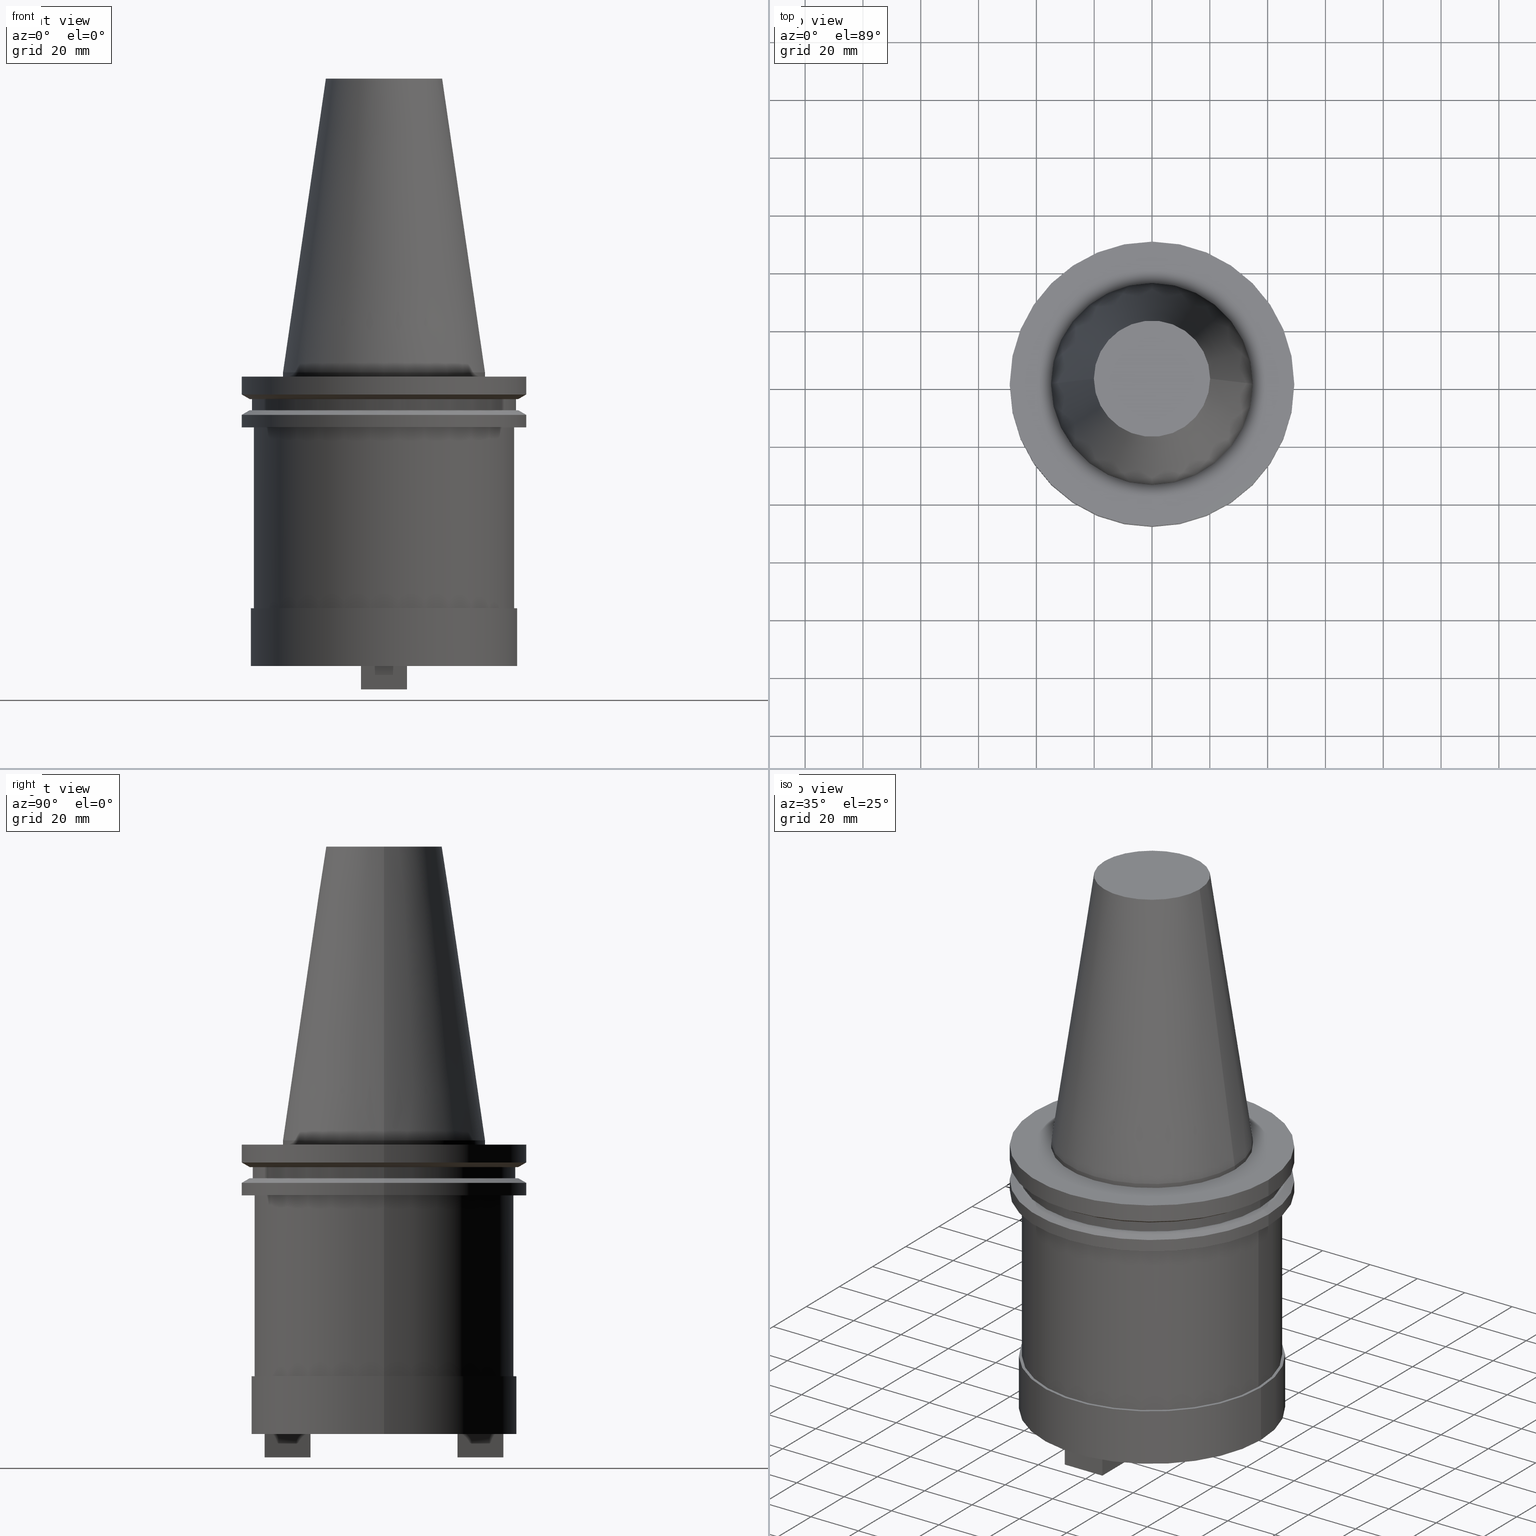
[diagram: canonical four-view strip — front | top / right | iso, engineering-drawing reading convention]
A machine part, canonical four-view strip (front | top / right | iso — engineering-drawing reading convention). The complete STEP part file that produces these views, byte-faithful:
ISO-10303-21;
HEADER;
FILE_DESCRIPTION (( 'STEP AP203' ),
    '1' );
FILE_NAME ('BCV50H-SMC1_500-4.stp',
    '2022-03-03T21:10:57',
    ( '' ),
    ( '' ),
    'SwSTEP 2.0',
    'SolidWorks 2021',
    '' );
FILE_SCHEMA (( 'CONFIG_CONTROL_DESIGN' ));
ENDSEC;

DATA;
#1 = DIRECTION ( 'NONE',  ( -0.000000000000000000, -0.000000000000000000, 1.000000000000000000 ) ) ;
#2 = ORIENTED_EDGE ( 'NONE', *, *, #653, .T. ) ;
#3 = ADVANCED_FACE ( 'NONE', ( #151 ), #161, .T. ) ;
#4 = DIRECTION ( 'NONE',  ( 0.8660254037844405950, 1.060575238724909133E-16, -0.4999999999999965583 ) ) ;
#5 = EDGE_CURVE ( 'NONE', #887, #789, #555, .T. ) ;
#6 = AXIS2_PLACEMENT_3D ( 'NONE', #604, #876, #469 ) ;
#7 = APPROVAL_PERSON_ORGANIZATION ( #219, #441, #473 ) ;
#8 = DIRECTION ( 'NONE',  ( -0.000000000000000000, -0.000000000000000000, 1.000000000000000000 ) ) ;
#9 = ORIENTED_EDGE ( 'NONE', *, *, #810, .F. ) ;
#10 = AXIS2_PLACEMENT_3D ( 'NONE', #53, #985, #574 ) ;
#11 = LINE ( 'NONE', #360, #911 ) ;
#12 = EDGE_CURVE ( 'NONE', #721, #90, #637, .T. ) ;
#13 = CARTESIAN_POINT ( 'NONE',  ( 7.936000000000001720, 41.27549999999999386, -109.6800000000000068 ) ) ;
#14 = ORIENTED_EDGE ( 'NONE', *, *, #977, .F. ) ;
#15 = ORIENTED_EDGE ( 'NONE', *, *, #691, .T. ) ;
#16 = DIRECTION ( 'NONE',  ( 1.000000000000000000, 0.000000000000000000, 0.000000000000000000 ) ) ;
#17 = DIRECTION ( 'NONE',  ( -0.000000000000000000, -0.000000000000000000, 1.000000000000000000 ) ) ;
#18 = ADVANCED_FACE ( 'NONE', ( #1058 ), #578, .F. ) ;
#19 = ORIENTED_EDGE ( 'NONE', *, *, #258, .F. ) ;
#20 = DIRECTION ( 'NONE',  ( 0.000000000000000000, -0.000000000000000000, 1.000000000000000000 ) ) ;
#21 = ORIENTED_EDGE ( 'NONE', *, *, #990, .T. ) ;
#22 = LINE ( 'NONE', #288, #605 ) ;
#23 = LINE ( 'NONE', #543, #656 ) ;
#24 = CIRCLE ( 'NONE', #298, 49.21500000000000341 ) ;
#25 = ORIENTED_EDGE ( 'NONE', *, *, #324, .T. ) ;
#26 = DIRECTION ( 'NONE',  ( -1.000000000000000000, 0.000000000000000000, 0.000000000000000000 ) ) ;
#27 = VECTOR ( 'NONE', #88, 1000.000000000000000 ) ;
#28 = AXIS2_PLACEMENT_3D ( 'NONE', #766, #595, #518 ) ;
#29 = ORIENTED_EDGE ( 'NONE', *, *, #586, .T. ) ;
#30 = DIRECTION ( 'NONE',  ( 1.000000000000000000, 0.000000000000000000, 0.000000000000000000 ) ) ;
#31 = ORIENTED_EDGE ( 'NONE', *, *, #639, .F. ) ;
#32 = FACE_OUTER_BOUND ( 'NONE', #647, .T. ) ;
#33 = VERTEX_POINT ( 'NONE', #307 ) ;
#34 = ADVANCED_FACE ( 'NONE', ( #482 ), #805, .T. ) ;
#35 = DIRECTION ( 'NONE',  ( 0.000000000000000000, -0.000000000000000000, 1.000000000000000000 ) ) ;
#36 = MECHANICAL_CONTEXT ( 'NONE', #358, 'mechanical' ) ;
#37 = DIRECTION ( 'NONE',  ( -1.000000000000000000, 0.000000000000000000, 0.000000000000000000 ) ) ;
#38 = LINE ( 'NONE', #701, #234 ) ;
#39 = EDGE_LOOP ( 'NONE', ( #1020, #846, #235, #212 ) ) ;
#40 = UNCERTAINTY_MEASURE_WITH_UNIT (LENGTH_MEASURE( 1.000000000000000082E-05 ), #102, 'distance_accuracy_value', 'NONE');
#41 = CARTESIAN_POINT ( 'NONE',  ( 0.000000000000000000, 0.000000000000000000, -109.6800000000000068 ) ) ;
#42 = PERSON_AND_ORGANIZATION ( #559, #176 ) ;
#43 = DIRECTION ( 'NONE',  ( -0.000000000000000000, -0.000000000000000000, 1.000000000000000000 ) ) ;
#44 = CARTESIAN_POINT ( 'NONE',  ( 0.000000000000000000, 0.000000000000000000, -47.99999999999998579 ) ) ;
#45 = AXIS2_PLACEMENT_3D ( 'NONE', #720, #869, #681 ) ;
#46 = ORIENTED_EDGE ( 'NONE', *, *, #954, .F. ) ;
#47 = CC_DESIGN_SECURITY_CLASSIFICATION ( #705, ( #959 ) ) ;
#48 = AXIS2_PLACEMENT_3D ( 'NONE', #885, #43, #489 ) ;
#49 = AXIS2_PLACEMENT_3D ( 'NONE', #971, #1035, #492 ) ;
#50 = CARTESIAN_POINT ( 'NONE',  ( -7.935999999999997279, -41.27550000000000807, -109.6800000000000068 ) ) ;
#51 = PERSON_AND_ORGANIZATION ( #559, #176 ) ;
#52 = EDGE_CURVE ( 'NONE', #731, #789, #1027, .T. ) ;
#53 = CARTESIAN_POINT ( 'NONE',  ( 0.000000000000000000, 0.000000000000000000, -1.499999999999987566 ) ) ;
#54 = LINE ( 'NONE', #227, #159 ) ;
#55 = ORIENTED_EDGE ( 'NONE', *, *, #839, .T. ) ;
#56 = FACE_OUTER_BOUND ( 'NONE', #352, .T. ) ;
#57 = DATE_AND_TIME ( #410, #688 ) ;
#58 = DIRECTION ( 'NONE',  ( 1.000000000000000000, -0.000000000000000000, -0.000000000000000000 ) ) ;
#59 = CARTESIAN_POINT ( 'NONE',  ( -45.00000000000000000, 5.510910596163089556E-15, -81.59999999999999432 ) ) ;
#60 = ADVANCED_FACE ( 'NONE', ( #411 ), #393, .F. ) ;
#61 = VERTEX_POINT ( 'NONE', #650 ) ;
#62 = DIRECTION ( 'NONE',  ( -0.000000000000000000, -0.000000000000000000, 1.000000000000000000 ) ) ;
#63 = APPROVAL_ROLE ( '' ) ;
#64 = CARTESIAN_POINT ( 'NONE',  ( 46.04999999999999716, 0.000000000000000000, -101.5999999999999943 ) ) ;
#65 = DIRECTION ( 'NONE',  ( 1.000000000000000000, 0.000000000000000000, 0.000000000000000000 ) ) ;
#66 = VERTEX_POINT ( 'NONE', #968 ) ;
#67 = VECTOR ( 'NONE', #627, 999.9999999999998863 ) ;
#68 = EDGE_CURVE ( 'NONE', #693, #425, #818, .T. ) ;
#69 = VECTOR ( 'NONE', #513, 1000.000000000000000 ) ;
#70 = CARTESIAN_POINT ( 'NONE',  ( 7.936000000000001720, -41.27550000000000807, -109.6800000000000068 ) ) ;
#71 = AXIS2_PLACEMENT_3D ( 'NONE', #624, #683, #537 ) ;
#72 = LINE ( 'NONE', #333, #923 ) ;
#73 = VERTEX_POINT ( 'NONE', #226 ) ;
#74 = CARTESIAN_POINT ( 'NONE',  ( 0.000000000000000000, 0.000000000000000000, -81.59999999999999432 ) ) ;
#75 = EDGE_CURVE ( 'NONE', #184, #61, #706, .T. ) ;
#76 = DIRECTION ( 'NONE',  ( 1.000000000000000000, -0.000000000000000000, -0.000000000000000000 ) ) ;
#77 = ORIENTED_EDGE ( 'NONE', *, *, #420, .F. ) ;
#78 = FACE_OUTER_BOUND ( 'NONE', #611, .T. ) ;
#79 = EDGE_CURVE ( 'NONE', #697, #631, #892, .T. ) ;
#80 = CARTESIAN_POINT ( 'NONE',  ( -34.92499999999999005, 4.277078946022130098E-15, -1.499999999999987566 ) ) ;
#81 = DESIGN_CONTEXT ( 'detailed design', #1004, 'design' ) ;
#82 = ORIENTED_EDGE ( 'NONE', *, *, #1019, .F. ) ;
#83 = CARTESIAN_POINT ( 'NONE',  ( 0.000000000000000000, 0.000000000000000000, -47.99999999999998579 ) ) ;
#84 = AXIS2_PLACEMENT_3D ( 'NONE', #847, #784, #91 ) ;
#85 = AXIS2_PLACEMENT_3D ( 'NONE', #107, #793, #30 ) ;
#86 = VECTOR ( 'NONE', #58, 1000.000000000000000 ) ;
#87 = AXIS2_PLACEMENT_3D ( 'NONE', #448, #781, #16 ) ;
#88 = DIRECTION ( 'NONE',  ( -0.000000000000000000, -0.000000000000000000, 1.000000000000000000 ) ) ;
#89 = EDGE_CURVE ( 'NONE', #1000, #73, #725, .T. ) ;
#90 = VERTEX_POINT ( 'NONE', #899 ) ;
#91 = DIRECTION ( 'NONE',  ( 1.000000000000000000, 0.000000000000000000, 0.000000000000000000 ) ) ;
#92 = DIRECTION ( 'NONE',  ( -0.000000000000000000, -0.000000000000000000, 1.000000000000000000 ) ) ;
#93 = EDGE_LOOP ( 'NONE', ( #1087, #1033, #1055, #374 ) ) ;
#94 = CC_DESIGN_DATE_AND_TIME_ASSIGNMENT ( #132, #1066, ( #376 ) ) ;
#95 = DIRECTION ( 'NONE',  ( 1.000000000000000000, 0.000000000000000000, 0.000000000000000000 ) ) ;
#96 = DIRECTION ( 'NONE',  ( 1.093014602719933898E-16, 1.000000000000000000, -0.000000000000000000 ) ) ;
#97 = FACE_OUTER_BOUND ( 'NONE', #623, .T. ) ;
#98 = ORIENTED_EDGE ( 'NONE', *, *, #214, .T. ) ;
#99 = ADVANCED_FACE ( 'NONE', ( #400 ), #1067, .F. ) ;
#100 = CARTESIAN_POINT ( 'NONE',  ( -46.04999999999999716, 5.639498510073560988E-15, -81.59999999999999432 ) ) ;
#101 = VECTOR ( 'NONE', #844, 1000.000000000000114 ) ;
#102 =( LENGTH_UNIT ( ) NAMED_UNIT ( * ) SI_UNIT ( .MILLI., .METRE. ) );
#103 = AXIS2_PLACEMENT_3D ( 'NONE', #131, #554, #797 ) ;
#104 = ORIENTED_EDGE ( 'NONE', *, *, #338, .T. ) ;
#105 = CONICAL_SURFACE ( 'NONE', #460, 49.21500000000000341, 1.047197551196601628 ) ;
#106 = CARTESIAN_POINT ( 'NONE',  ( -46.43919780457007818, 5.857130358318727293E-15, -9.254999999999984794 ) ) ;
#107 = CARTESIAN_POINT ( 'NONE',  ( 0.000000000000000000, 0.000000000000000000, 0.000000000000000000 ) ) ;
#108 = VERTEX_POINT ( 'NONE', #894 ) ;
#109 = VERTEX_POINT ( 'NONE', #64 ) ;
#110 = CARTESIAN_POINT ( 'NONE',  ( 45.00000000000000000, 0.000000000000000000, -81.59999999999999432 ) ) ;
#111 = DIRECTION ( 'NONE',  ( 0.000000000000000000, -1.000000000000000000, 0.000000000000000000 ) ) ;
#112 = ADVANCED_FACE ( 'NONE', ( #245, #904 ), #386, .F. ) ;
#113 = VERTEX_POINT ( 'NONE', #220 ) ;
#114 = PLANE ( 'NONE',  #888 ) ;
#115 = ORIENTED_EDGE ( 'NONE', *, *, #75, .F. ) ;
#116 = PLANE ( 'NONE',  #760 ) ;
#117 =( NAMED_UNIT ( * ) PLANE_ANGLE_UNIT ( ) SI_UNIT ( $, .RADIAN. ) );
#118 = VECTOR ( 'NONE', #852, 1000.000000000000000 ) ;
#119 = EDGE_LOOP ( 'NONE', ( #621, #877 ) ) ;
#120 = DIRECTION ( 'NONE',  ( -0.000000000000000000, -0.000000000000000000, 1.000000000000000000 ) ) ;
#121 = EDGE_CURVE ( 'NONE', #698, #702, #303, .T. ) ;
#122 = CIRCLE ( 'NONE', #549, 49.21499999999998920 ) ;
#123 = ORIENTED_EDGE ( 'NONE', *, *, #330, .F. ) ;
#124 = FACE_OUTER_BOUND ( 'NONE', #1030, .T. ) ;
#125 = DIRECTION ( 'NONE',  ( 0.000000000000000000, 0.000000000000000000, -1.000000000000000000 ) ) ;
#126 = EDGE_LOOP ( 'NONE', ( #418, #1005 ) ) ;
#127 = CARTESIAN_POINT ( 'NONE',  ( 45.64500000000000313, 0.000000000000000000, -9.254999999999984794 ) ) ;
#128 = ADVANCED_FACE ( 'NONE', ( #430 ), #591, .T. ) ;
#129 = ORIENTED_EDGE ( 'NONE', *, *, #12, .F. ) ;
#130 = EDGE_CURVE ( 'NONE', #109, #61, #350, .T. ) ;
#131 = CARTESIAN_POINT ( 'NONE',  ( 0.000000000000000000, 0.000000000000000000, -9.254999999999984794 ) ) ;
#132 = DATE_AND_TIME ( #150, #1026 ) ;
#133 = DIRECTION ( 'NONE',  ( -0.1443082272672999988, 0.000000000000000000, -0.9895327864921755756 ) ) ;
#134 = DIRECTION ( 'NONE',  ( -2.185891476785291317E-16, -1.000000000000000000, 0.000000000000000000 ) ) ;
#135 = VERTEX_POINT ( 'NONE', #249 ) ;
#136 = DIRECTION ( 'NONE',  ( -0.000000000000000000, -0.000000000000000000, 1.000000000000000000 ) ) ;
#137 = EDGE_CURVE ( 'NONE', #320, #946, #364, .T. ) ;
#138 = DATE_AND_TIME ( #316, #236 ) ;
#139 = CARTESIAN_POINT ( 'NONE',  ( 0.000000000000000000, 0.000000000000000000, -81.59999999999999432 ) ) ;
#140 = LINE ( 'NONE', #401, #771 ) ;
#141 = ORIENTED_EDGE ( 'NONE', *, *, #1028, .T. ) ;
#142 = AXIS2_PLACEMENT_3D ( 'NONE', #600, #1, #1010 ) ;
#143 = AXIS2_PLACEMENT_3D ( 'NONE', #389, #952, #1047 ) ;
#144 = DIRECTION ( 'NONE',  ( 1.000000000000000000, 0.000000000000000000, 0.000000000000000000 ) ) ;
#145 = COORDINATED_UNIVERSAL_TIME_OFFSET ( 6, 0, .BEHIND. ) ;
#146 = ORIENTED_EDGE ( 'NONE', *, *, #977, .T. ) ;
#147 = CARTESIAN_POINT ( 'NONE',  ( 7.936000000000001720, -25.40450000000000585, -109.6800000000000068 ) ) ;
#148 = ORIENTED_EDGE ( 'NONE', *, *, #158, .T. ) ;
#149 = DIRECTION ( 'NONE',  ( 1.000000000000000000, -2.185891476785291563E-16, -0.000000000000000000 ) ) ;
#150 = CALENDAR_DATE ( 2022, 3, 3 ) ;
#151 = FACE_OUTER_BOUND ( 'NONE', #311, .T. ) ;
#152 = DIRECTION ( 'NONE',  ( -0.000000000000000000, -0.000000000000000000, 1.000000000000000000 ) ) ;
#153 = EDGE_LOOP ( 'NONE', ( #931, #313, #855, #711 ) ) ;
#154 = DIRECTION ( 'NONE',  ( -0.000000000000000000, -0.000000000000000000, 1.000000000000000000 ) ) ;
#155 = DIRECTION ( 'NONE',  ( 1.000000000000000000, 0.000000000000000000, 0.000000000000000000 ) ) ;
#156 = DIRECTION ( 'NONE',  ( -0.000000000000000000, -0.000000000000000000, 1.000000000000000000 ) ) ;
#157 = VERTEX_POINT ( 'NONE', #110 ) ;
#158 = EDGE_CURVE ( 'NONE', #700, #90, #22, .T. ) ;
#159 = VECTOR ( 'NONE', #730, 1000.000000000000114 ) ;
#160 = AXIS2_PLACEMENT_3D ( 'NONE', #608, #168, #1076 ) ;
#161 = CONICAL_SURFACE ( 'NONE', #774, 34.92499999999999005, 0.1448138465474119452 ) ;
#162 = FACE_OUTER_BOUND ( 'NONE', #169, .T. ) ;
#163 = DIRECTION ( 'NONE',  ( -0.000000000000000000, -0.000000000000000000, 1.000000000000000000 ) ) ;
#164 = CARTESIAN_POINT ( 'NONE',  ( -46.43919780457007818, 0.000000000000000000, -13.10499999999999154 ) ) ;
#165 = EDGE_LOOP ( 'NONE', ( #901, #289 ) ) ;
#166 = DIRECTION ( 'NONE',  ( -0.000000000000000000, -1.000000000000000000, -0.000000000000000000 ) ) ;
#167 = DIRECTION ( 'NONE',  ( 1.000000000000000000, 0.000000000000000000, 0.000000000000000000 ) ) ;
#168 = DIRECTION ( 'NONE',  ( 0.000000000000000000, 0.000000000000000000, -1.000000000000000000 ) ) ;
#169 = EDGE_LOOP ( 'NONE', ( #949, #207, #687, #668 ) ) ;
#170 = LINE ( 'NONE', #1074, #484 ) ;
#171 = EDGE_CURVE ( 'NONE', #626, #228, #415, .T. ) ;
#172 = DIRECTION ( 'NONE',  ( -0.000000000000000000, -0.000000000000000000, 1.000000000000000000 ) ) ;
#173 = EDGE_LOOP ( 'NONE', ( #25, #458, #744, #265 ) ) ;
#174 = DIRECTION ( 'NONE',  ( 1.093014602719933898E-16, 1.000000000000000000, -0.000000000000000000 ) ) ;
#175 = AXIS2_PLACEMENT_3D ( 'NONE', #1068, #156, #65 ) ;
#176 = ORGANIZATION ( 'UNSPECIFIED', 'UNSPECIFIED', '' ) ;
#177 = AXIS2_PLACEMENT_3D ( 'NONE', #560, #738, #155 ) ;
#178 = CIRCLE ( 'NONE', #461, 46.04999999999999716 ) ;
#179 = DIRECTION ( 'NONE',  ( -0.000000000000000000, -0.000000000000000000, 1.000000000000000000 ) ) ;
#180 = EDGE_LOOP ( 'NONE', ( #464, #997, #1044, #913 ) ) ;
#181 = CARTESIAN_POINT ( 'NONE',  ( 0.000000000000000000, 0.000000000000000000, -81.59999999999999432 ) ) ;
#182 = CARTESIAN_POINT ( 'NONE',  ( -7.935999999999997279, 41.27549999999999386, -109.6800000000000068 ) ) ;
#183 = CARTESIAN_POINT ( 'NONE',  ( -46.43919780457007818, 5.687161494633754392E-15, -9.254999999999984794 ) ) ;
#184 = VERTEX_POINT ( 'NONE', #100 ) ;
#185 = ADVANCED_FACE ( 'NONE', ( #281, #1031 ), #116, .F. ) ;
#186 = CARTESIAN_POINT ( 'NONE',  ( 49.21499999999999631, 0.000000000000000000, 101.5999999999999943 ) ) ;
#187 = CARTESIAN_POINT ( 'NONE',  ( 0.000000000000000000, 0.000000000000000000, 0.000000000000000000 ) ) ;
#188 = EDGE_LOOP ( 'NONE', ( #660, #676 ) ) ;
#189 = ADVANCED_FACE ( 'NONE', ( #619, #932 ), #1007, .F. ) ;
#190 = ORIENTED_EDGE ( 'NONE', *, *, #746, .T. ) ;
#191 = DIRECTION ( 'NONE',  ( -0.000000000000000000, -0.000000000000000000, 1.000000000000000000 ) ) ;
#192 = CONICAL_SURFACE ( 'NONE', #531, 46.43919780457007818, 1.047197551196601628 ) ;
#193 = AXIS2_PLACEMENT_3D ( 'NONE', #610, #125, #625 ) ;
#194 = DIRECTION ( 'NONE',  ( -1.000000000000000000, 0.000000000000000000, 0.000000000000000000 ) ) ;
#195 = VECTOR ( 'NONE', #96, 1000.000000000000000 ) ;
#196 = ORIENTED_EDGE ( 'NONE', *, *, #52, .F. ) ;
#197 = EDGE_LOOP ( 'NONE', ( #530, #14 ) ) ;
#198 = CARTESIAN_POINT ( 'NONE',  ( -49.21499999999999631, 6.027099222003697826E-15, 101.5999999999999943 ) ) ;
#199 = ADVANCED_FACE ( 'NONE', ( #606 ), #1017, .F. ) ;
#200 = PLANE ( 'NONE',  #193 ) ;
#201 = EDGE_LOOP ( 'NONE', ( #447, #875, #261, #348 ) ) ;
#202 = CARTESIAN_POINT ( 'NONE',  ( 0.000000000000000000, 0.000000000000000000, -13.10499999999999154 ) ) ;
#203 = LINE ( 'NONE', #542, #1081 ) ;
#204 = EDGE_CURVE ( 'NONE', #631, #721, #859, .T. ) ;
#205 = VERTEX_POINT ( 'NONE', #106 ) ;
#206 = LINE ( 'NONE', #285, #67 ) ;
#207 = ORIENTED_EDGE ( 'NONE', *, *, #1008, .T. ) ;
#208 = LINE ( 'NONE', #816, #831 ) ;
#209 = CONICAL_SURFACE ( 'NONE', #670, 46.43919780457007818, 1.047197551196601628 ) ;
#210 = APPLICATION_PROTOCOL_DEFINITION ( 'international standard', 'config_control_design', 1994, #1004 ) ;
#211 = CC_DESIGN_PERSON_AND_ORGANIZATION_ASSIGNMENT ( #638, #404, ( #959 ) ) ;
#212 = ORIENTED_EDGE ( 'NONE', *, *, #883, .T. ) ;
#213 = CARTESIAN_POINT ( 'NONE',  ( -45.64500000000000313, 5.589900314708094957E-15, -9.254999999999984794 ) ) ;
#214 = EDGE_CURVE ( 'NONE', #405, #693, #947, .T. ) ;
#215 = VECTOR ( 'NONE', #644, 1000.000000000000000 ) ;
#216 = ORIENTED_EDGE ( 'NONE', *, *, #1056, .T. ) ;
#217 = CARTESIAN_POINT ( 'NONE',  ( 7.936000000000001720, 41.27549999999999386, -109.6800000000000068 ) ) ;
#218 = ADVANCED_BREP_SHAPE_REPRESENTATION ( 'BCV50H-SMC1_500-4', ( #867, #85 ), #758 ) ;
#219 = PERSON_AND_ORGANIZATION ( #559, #176 ) ;
#220 = CARTESIAN_POINT ( 'NONE',  ( -45.64500000000000313, 5.589900314708094957E-15, -13.10499999999999154 ) ) ;
#221 = CARTESIAN_POINT ( 'NONE',  ( 0.000000000000000000, 0.000000000000000000, -7.652389855251379380 ) ) ;
#222 = EDGE_LOOP ( 'NONE', ( #906, #435, #21, #129 ) ) ;
#223 = EDGE_CURVE ( 'NONE', #585, #550, #203, .T. ) ;
#224 = DIRECTION ( 'NONE',  ( 0.000000000000000000, -0.000000000000000000, 1.000000000000000000 ) ) ;
#225 = APPROVAL_STATUS ( 'not_yet_approved' ) ;
#226 = CARTESIAN_POINT ( 'NONE',  ( 34.92499999999999005, 0.000000000000000000, -1.499999999999987566 ) ) ;
#227 = CARTESIAN_POINT ( 'NONE',  ( 46.43919780457007818, 0.000000000000000000, -9.254999999999984794 ) ) ;
#228 = VERTEX_POINT ( 'NONE', #776 ) ;
#229 = EDGE_CURVE ( 'NONE', #73, #1000, #689, .T. ) ;
#230 = LINE ( 'NONE', #809, #1046 ) ;
#231 = COORDINATED_UNIVERSAL_TIME_OFFSET ( 6, 0, .BEHIND. ) ;
#232 = DIRECTION ( 'NONE',  ( -0.000000000000000000, -0.000000000000000000, 1.000000000000000000 ) ) ;
#233 = DIRECTION ( 'NONE',  ( 0.000000000000000000, -0.000000000000000000, 1.000000000000000000 ) ) ;
#234 = VECTOR ( 'NONE', #387, 1000.000000000000000 ) ;
#235 = ORIENTED_EDGE ( 'NONE', *, *, #314, .F. ) ;
#236 = LOCAL_TIME ( 15, 10, 57.00000000000000000, #566 ) ;
#237 = AXIS2_PLACEMENT_3D ( 'NONE', #139, #663, #317 ) ;
#238 = AXIS2_PLACEMENT_3D ( 'NONE', #240, #232, #813 ) ;
#239 = CYLINDRICAL_SURFACE ( 'NONE', #659, 49.21499999999999631 ) ;
#240 = CARTESIAN_POINT ( 'NONE',  ( 0.000000000000000000, 0.000000000000000000, -19.04999999999999716 ) ) ;
#241 = DIRECTION ( 'NONE',  ( 1.000000000000000000, 0.000000000000000000, -0.000000000000000000 ) ) ;
#242 = ORIENTED_EDGE ( 'NONE', *, *, #244, .T. ) ;
#243 = DIRECTION ( 'NONE',  ( -0.000000000000000000, -0.000000000000000000, 1.000000000000000000 ) ) ;
#244 = EDGE_CURVE ( 'NONE', #550, #736, #11, .T. ) ;
#245 = FACE_BOUND ( 'NONE', #652, .T. ) ;
#246 = DIRECTION ( 'NONE',  ( 1.000000000000000000, -2.185891476785291317E-16, 0.000000000000000000 ) ) ;
#247 = ORIENTED_EDGE ( 'NONE', *, *, #355, .T. ) ;
#248 = DIRECTION ( 'NONE',  ( 1.000000000000000000, 0.000000000000000000, 0.000000000000000000 ) ) ;
#249 = CARTESIAN_POINT ( 'NONE',  ( 20.10819343178871321, 3.369811209154858606E-15, 101.5999999999999801 ) ) ;
#250 = FACE_OUTER_BOUND ( 'NONE', #165, .T. ) ;
#251 = ORIENTED_EDGE ( 'NONE', *, *, #942, .T. ) ;
#252 = AXIS2_PLACEMENT_3D ( 'NONE', #1053, #657, #742 ) ;
#253 = CYLINDRICAL_SURFACE ( 'NONE', #940, 45.64500000000000313 ) ;
#254 = AXIS2_PLACEMENT_3D ( 'NONE', #1057, #649, #713 ) ;
#255 = AXIS2_PLACEMENT_3D ( 'NONE', #74, #243, #582 ) ;
#256 = LINE ( 'NONE', #183, #101 ) ;
#257 = VERTEX_POINT ( 'NONE', #277 ) ;
#258 = EDGE_CURVE ( 'NONE', #33, #633, #640, .T. ) ;
#259 = CARTESIAN_POINT ( 'NONE',  ( 0.000000000000000000, 0.000000000000000000, -1.499999999999987566 ) ) ;
#260 = CARTESIAN_POINT ( 'NONE',  ( -45.64500000000000313, 5.589900314708094957E-15, 101.5999999999999943 ) ) ;
#261 = ORIENTED_EDGE ( 'NONE', *, *, #478, .F. ) ;
#262 = DIRECTION ( 'NONE',  ( 0.000000000000000000, 0.000000000000000000, -1.000000000000000000 ) ) ;
#263 = EDGE_CURVE ( 'NONE', #432, #946, #304, .T. ) ;
#264 = CYLINDRICAL_SURFACE ( 'NONE', #142, 34.92499999999999005 ) ;
#265 = ORIENTED_EDGE ( 'NONE', *, *, #137, .F. ) ;
#266 = DIRECTION ( 'NONE',  ( 1.000000000000000000, 0.000000000000000000, 0.000000000000000000 ) ) ;
#267 = AXIS2_PLACEMENT_3D ( 'NONE', #596, #929, #756 ) ;
#268 = DIRECTION ( 'NONE',  ( 0.000000000000000000, 0.000000000000000000, -1.000000000000000000 ) ) ;
#269 = VECTOR ( 'NONE', #908, 1000.000000000000000 ) ;
#270 = EDGE_CURVE ( 'NONE', #470, #698, #477, .T. ) ;
#271 = DIRECTION ( 'NONE',  ( -0.000000000000000000, -0.000000000000000000, 1.000000000000000000 ) ) ;
#272 = EDGE_LOOP ( 'NONE', ( #242, #363, #46, #190 ) ) ;
#273 = DIRECTION ( 'NONE',  ( 1.000000000000000000, 0.000000000000000000, 0.000000000000000000 ) ) ;
#274 = CYLINDRICAL_SURFACE ( 'NONE', #533, 8.750000000000000000 ) ;
#275 = ADVANCED_FACE ( 'NONE', ( #884 ), #239, .T. ) ;
#276 = EDGE_LOOP ( 'NONE', ( #335, #296, #279, #115 ) ) ;
#277 = CARTESIAN_POINT ( 'NONE',  ( 7.936000000000001720, -25.40450000000000585, -109.6800000000000068 ) ) ;
#278 = PLANE ( 'NONE',  #1080 ) ;
#279 = ORIENTED_EDGE ( 'NONE', *, *, #130, .T. ) ;
#280 = ADVANCED_FACE ( 'NONE', ( #124 ), #378, .T. ) ;
#281 = FACE_BOUND ( 'NONE', #857, .T. ) ;
#282 = VECTOR ( 'NONE', #900, 1000.000000000000000 ) ;
#283 = VECTOR ( 'NONE', #995, 1000.000000000000000 ) ;
#284 = ORIENTED_EDGE ( 'NONE', *, *, #520, .F. ) ;
#285 = CARTESIAN_POINT ( 'NONE',  ( 34.92499999999999005, 4.277078946022130098E-15, 0.000000000000000000 ) ) ;
#286 = EDGE_LOOP ( 'NONE', ( #1060, #1011 ) ) ;
#287 = EDGE_CURVE ( 'NONE', #626, #345, #230, .T. ) ;
#288 = CARTESIAN_POINT ( 'NONE',  ( 49.21500000000000341, 6.027099222003699404E-15, -14.70761014474859785 ) ) ;
#289 = ORIENTED_EDGE ( 'NONE', *, *, #935, .T. ) ;
#290 = PLANE ( 'NONE',  #1048 ) ;
#291 = ORIENTED_EDGE ( 'NONE', *, *, #769, .T. ) ;
#292 = CARTESIAN_POINT ( 'NONE',  ( 8.750000000000000000, 0.000000000000000000, -47.99999999999998579 ) ) ;
#293 = CARTESIAN_POINT ( 'NONE',  ( -46.04999999999999716, 5.639498510073560988E-15, -101.5999999999999943 ) ) ;
#294 = ORIENTED_EDGE ( 'NONE', *, *, #612, .T. ) ;
#295 = DIRECTION ( 'NONE',  ( 0.000000000000000000, 0.000000000000000000, 1.000000000000000000 ) ) ;
#296 = ORIENTED_EDGE ( 'NONE', *, *, #639, .T. ) ;
#297 = PLANE ( 'NONE',  #961 ) ;
#298 = AXIS2_PLACEMENT_3D ( 'NONE', #221, #1038, #266 ) ;
#299 = EDGE_CURVE ( 'NONE', #407, #205, #994, .T. ) ;
#300 = AXIS2_PLACEMENT_3D ( 'NONE', #840, #92, #357 ) ;
#301 = DIRECTION ( 'NONE',  ( 0.000000000000000000, 0.000000000000000000, -1.000000000000000000 ) ) ;
#302 = DIRECTION ( 'NONE',  ( 1.000000000000000000, -1.093014602719933898E-16, 0.000000000000000000 ) ) ;
#303 = CIRCLE ( 'NONE', #28, 45.64500000000000313 ) ;
#304 = CIRCLE ( 'NONE', #87, 49.21499999999999631 ) ;
#305 = ORIENTED_EDGE ( 'NONE', *, *, #564, .T. ) ;
#306 = FACE_OUTER_BOUND ( 'NONE', #309, .T. ) ;
#307 = CARTESIAN_POINT ( 'NONE',  ( -45.00000000000000000, 5.510910596163089556E-15, -19.04999999999998295 ) ) ;
#308 = DIRECTION ( 'NONE',  ( 0.000000000000000000, -0.000000000000000000, 1.000000000000000000 ) ) ;
#309 = EDGE_LOOP ( 'NONE', ( #628, #77 ) ) ;
#310 = CARTESIAN_POINT ( 'NONE',  ( 7.936000000000001720, 41.27549999999999386, -109.6800000000000068 ) ) ;
#311 = EDGE_LOOP ( 'NONE', ( #388, #29, #576, #359 ) ) ;
#312 = DIRECTION ( 'NONE',  ( 1.000000000000000000, 0.000000000000000000, 0.000000000000000000 ) ) ;
#313 = ORIENTED_EDGE ( 'NONE', *, *, #171, .F. ) ;
#314 = EDGE_CURVE ( 'NONE', #581, #958, #976, .T. ) ;
#315 = DIRECTION ( 'NONE',  ( 1.000000000000000000, 0.000000000000000000, 0.000000000000000000 ) ) ;
#316 = CALENDAR_DATE ( 2022, 3, 3 ) ;
#317 = DIRECTION ( 'NONE',  ( 1.000000000000000000, 0.000000000000000000, 0.000000000000000000 ) ) ;
#318 = CARTESIAN_POINT ( 'NONE',  ( -8.750000000000000000, 1.071565949253934124E-15, -47.99999999999998579 ) ) ;
#319 = VECTOR ( 'NONE', #787, 1000.000000000000000 ) ;
#320 = VERTEX_POINT ( 'NONE', #398 ) ;
#321 = VECTOR ( 'NONE', #17, 1000.000000000000000 ) ;
#322 = VECTOR ( 'NONE', #166, 1000.000000000000000 ) ;
#323 = CARTESIAN_POINT ( 'NONE',  ( -49.21500000000000341, 6.027099222003699404E-15, -7.652389855251379380 ) ) ;
#324 = EDGE_CURVE ( 'NONE', #320, #439, #926, .T. ) ;
#325 = DATE_AND_TIME ( #817, #1009 ) ;
#326 = DIRECTION ( 'NONE',  ( 1.000000000000000000, 0.000000000000000000, 0.000000000000000000 ) ) ;
#327 = DIRECTION ( 'NONE',  ( -0.000000000000000000, -0.000000000000000000, 1.000000000000000000 ) ) ;
#328 = ORIENTED_EDGE ( 'NONE', *, *, #158, .F. ) ;
#329 = CARTESIAN_POINT ( 'NONE',  ( 7.936000000000001720, 41.27549999999999386, -101.5999999999999943 ) ) ;
#330 = EDGE_CURVE ( 'NONE', #61, #184, #178, .T. ) ;
#331 = ADVANCED_FACE ( 'NONE', ( #472 ), #732, .T. ) ;
#332 = DIRECTION ( 'NONE',  ( -0.000000000000000000, -0.000000000000000000, 1.000000000000000000 ) ) ;
#333 = CARTESIAN_POINT ( 'NONE',  ( -45.00000000000000000, 5.510910596163089556E-15, 101.5999999999999943 ) ) ;
#334 = PRODUCT_DEFINITION_SHAPE ( 'NONE', 'NONE',  #376 ) ;
#335 = ORIENTED_EDGE ( 'NONE', *, *, #471, .F. ) ;
#336 = CARTESIAN_POINT ( 'NONE',  ( -49.21499999999999631, 6.027099222003697826E-15, -1.499999999999987566 ) ) ;
#337 = CYLINDRICAL_SURFACE ( 'NONE', #890, 45.00000000000000000 ) ;
#338 = EDGE_CURVE ( 'NONE', #939, #721, #802, .T. ) ;
#339 = ORIENTED_EDGE ( 'NONE', *, *, #223, .T. ) ;
#340 = AXIS2_PLACEMENT_3D ( 'NONE', #181, #522, #95 ) ;
#341 = VECTOR ( 'NONE', #111, 1000.000000000000000 ) ;
#342 = DIRECTION ( 'NONE',  ( -0.000000000000000000, -0.000000000000000000, 1.000000000000000000 ) ) ;
#343 = AXIS2_PLACEMENT_3D ( 'NONE', #749, #262, #511 ) ;
#344 = CARTESIAN_POINT ( 'NONE',  ( -7.935999999999998167, 25.40449999999999164, -109.6800000000000068 ) ) ;
#345 = VERTEX_POINT ( 'NONE', #292 ) ;
#346 = CARTESIAN_POINT ( 'NONE',  ( 45.64500000000000313, 0.000000000000000000, -13.10499999999999154 ) ) ;
#347 = CARTESIAN_POINT ( 'NONE',  ( 49.21499999999999631, 0.000000000000000000, 101.5999999999999943 ) ) ;
#348 = ORIENTED_EDGE ( 'NONE', *, *, #355, .F. ) ;
#349 = FACE_OUTER_BOUND ( 'NONE', #514, .T. ) ;
#350 = LINE ( 'NONE', #684, #1029 ) ;
#351 = DIRECTION ( 'NONE',  ( 1.000000000000000000, 0.000000000000000000, 0.000000000000000000 ) ) ;
#352 = EDGE_LOOP ( 'NONE', ( #284, #861 ) ) ;
#353 = AXIS2_PLACEMENT_3D ( 'NONE', #969, #233, #406 ) ;
#354 = DIRECTION ( 'NONE',  ( 1.000000000000000000, 0.000000000000000000, 0.000000000000000000 ) ) ;
#355 = EDGE_CURVE ( 'NONE', #108, #546, #208, .T. ) ;
#356 = CIRCLE ( 'NONE', #49, 8.750000000000003553 ) ;
#357 = DIRECTION ( 'NONE',  ( 1.000000000000000000, 0.000000000000000000, 0.000000000000000000 ) ) ;
#358 = APPLICATION_CONTEXT ( 'configuration controlled 3d designs of mechanical parts and assemblies' ) ;
#359 = ORIENTED_EDGE ( 'NONE', *, *, #5, .F. ) ;
#360 = CARTESIAN_POINT ( 'NONE',  ( 7.936000000000001720, 25.40449999999999164, -101.5999999999999943 ) ) ;
#361 = DIRECTION ( 'NONE',  ( 0.000000000000000000, -1.000000000000000000, -0.000000000000000000 ) ) ;
#362 = ORIENTED_EDGE ( 'NONE', *, *, #324, .F. ) ;
#363 = ORIENTED_EDGE ( 'NONE', *, *, #1002, .F. ) ;
#364 = LINE ( 'NONE', #186, #587 ) ;
#365 = CARTESIAN_POINT ( 'NONE',  ( 0.000000000000000000, 0.000000000000000000, -9.254999999999984794 ) ) ;
#366 = ORIENTED_EDGE ( 'NONE', *, *, #68, .T. ) ;
#367 = DIRECTION ( 'NONE',  ( 1.093014602719933898E-16, 1.000000000000000000, 0.000000000000000000 ) ) ;
#368 = EDGE_CURVE ( 'NONE', #228, #626, #356, .T. ) ;
#369 = ORIENTED_EDGE ( 'NONE', *, *, #907, .T. ) ;
#370 = AXIS2_PLACEMENT_3D ( 'NONE', #259, #590, #741 ) ;
#371 = CIRCLE ( 'NONE', #267, 46.43919780457007818 ) ;
#372 = DIRECTION ( 'NONE',  ( -0.000000000000000000, -0.000000000000000000, 1.000000000000000000 ) ) ;
#373 = VECTOR ( 'NONE', #889, 1000.000000000000000 ) ;
#374 = ORIENTED_EDGE ( 'NONE', *, *, #898, .T. ) ;
#375 = CARTESIAN_POINT ( 'NONE',  ( 8.750000000000003553, 0.000000000000000000, -101.5999999999999943 ) ) ;
#376 = PRODUCT_DEFINITION ( 'UNKNOWN', '', #959, #81 ) ;
#377 = ORIENTED_EDGE ( 'NONE', *, *, #204, .T. ) ;
#378 = PLANE ( 'NONE',  #620 ) ;
#379 = FACE_OUTER_BOUND ( 'NONE', #462, .T. ) ;
#380 = ORIENTED_EDGE ( 'NONE', *, *, #526, .T. ) ;
#381 = CARTESIAN_POINT ( 'NONE',  ( 7.936000000000001720, -41.27550000000000807, -109.6800000000000068 ) ) ;
#382 = ORIENTED_EDGE ( 'NONE', *, *, #478, .T. ) ;
#383 = LINE ( 'NONE', #310, #1065 ) ;
#384 = ADVANCED_FACE ( 'NONE', ( #306, #821 ), #717, .F. ) ;
#385 = APPROVAL_STATUS ( 'not_yet_approved' ) ;
#386 = PLANE ( 'NONE',  #429 ) ;
#387 = DIRECTION ( 'NONE',  ( -0.000000000000000000, -0.000000000000000000, 1.000000000000000000 ) ) ;
#388 = ORIENTED_EDGE ( 'NONE', *, *, #965, .F. ) ;
#389 = CARTESIAN_POINT ( 'NONE',  ( 0.000000000000000000, 0.000000000000000000, -7.652389855251379380 ) ) ;
#390 = EDGE_CURVE ( 'NONE', #425, #585, #383, .T. ) ;
#391 = AXIS2_PLACEMENT_3D ( 'NONE', #842, #154, #496 ) ;
#392 = CALENDAR_DATE ( 2022, 3, 3 ) ;
#393 = PLANE ( 'NONE',  #618 ) ;
#394 = PLANE ( 'NONE',  #957 ) ;
#395 = AXIS2_PLACEMENT_3D ( 'NONE', #613, #191, #534 ) ;
#396 = CONICAL_SURFACE ( 'NONE', #704, 49.21500000000000341, 1.047197551196601628 ) ;
#397 = ORIENTED_EDGE ( 'NONE', *, *, #89, .F. ) ;
#398 = CARTESIAN_POINT ( 'NONE',  ( 49.21500000000000341, 0.000000000000000000, -7.652389855251379380 ) ) ;
#399 = DATE_TIME_ROLE ( 'classification_date' ) ;
#400 = FACE_OUTER_BOUND ( 'NONE', #153, .T. ) ;
#401 = CARTESIAN_POINT ( 'NONE',  ( 7.936000000000001720, 41.27549999999999386, -101.5999999999999943 ) ) ;
#402 = EDGE_LOOP ( 'NONE', ( #1037, #15, #921, #786 ) ) ;
#403 = CARTESIAN_POINT ( 'NONE',  ( 0.000000000000000000, 0.000000000000000000, -19.04999999999999716 ) ) ;
#404 = PERSON_AND_ORGANIZATION_ROLE ( 'design_supplier' ) ;
#405 = VERTEX_POINT ( 'NONE', #547 ) ;
#406 = DIRECTION ( 'NONE',  ( 1.000000000000000000, 0.000000000000000000, 0.000000000000000000 ) ) ;
#407 = VERTEX_POINT ( 'NONE', #1039 ) ;
#408 = ADVANCED_FACE ( 'NONE', ( #56 ), #297, .F. ) ;
#409 = DIRECTION ( 'NONE',  ( 1.000000000000000000, 0.000000000000000000, 0.000000000000000000 ) ) ;
#410 = CALENDAR_DATE ( 2022, 3, 3 ) ;
#411 = FACE_OUTER_BOUND ( 'NONE', #643, .T. ) ;
#412 = CARTESIAN_POINT ( 'NONE',  ( 7.936000000000001720, -41.27550000000000807, -109.6800000000000068 ) ) ;
#413 = AXIS2_PLACEMENT_3D ( 'NONE', #509, #8, #351 ) ;
#414 = ORIENTED_EDGE ( 'NONE', *, *, #79, .T. ) ;
#415 = CIRCLE ( 'NONE', #71, 8.750000000000003553 ) ;
#416 = DIRECTION ( 'NONE',  ( -0.000000000000000000, -1.000000000000000000, -0.000000000000000000 ) ) ;
#417 = CARTESIAN_POINT ( 'NONE',  ( 0.000000000000000000, 0.000000000000000000, -101.5999999999999943 ) ) ;
#418 = ORIENTED_EDGE ( 'NONE', *, *, #488, .T. ) ;
#419 = CARTESIAN_POINT ( 'NONE',  ( 34.92499999999999005, 0.000000000000000000, 101.5999999999999943 ) ) ;
#420 = EDGE_CURVE ( 'NONE', #631, #697, #122, .T. ) ;
#421 = LINE ( 'NONE', #438, #118 ) ;
#422 = ORIENTED_EDGE ( 'NONE', *, *, #512, .F. ) ;
#423 = CARTESIAN_POINT ( 'NONE',  ( 0.000000000000000000, 0.000000000000000000, -9.254999999999984794 ) ) ;
#424 = CARTESIAN_POINT ( 'NONE',  ( 7.936000000000001720, -41.27550000000000807, -101.5999999999999943 ) ) ;
#425 = VERTEX_POINT ( 'NONE', #217 ) ;
#426 = CIRCLE ( 'NONE', #993, 46.04999999999999716 ) ;
#427 = APPROVAL_PERSON_ORGANIZATION ( #548, #833, #798 ) ;
#428 = CARTESIAN_POINT ( 'NONE',  ( 0.000000000000000000, 0.000000000000000000, 101.5999999999999943 ) ) ;
#429 = AXIS2_PLACEMENT_3D ( 'NONE', #719, #301, #963 ) ;
#430 = FACE_OUTER_BOUND ( 'NONE', #882, .T. ) ;
#431 = CARTESIAN_POINT ( 'NONE',  ( 45.00000000000000000, 0.000000000000000000, 101.5999999999999943 ) ) ;
#432 = VERTEX_POINT ( 'NONE', #336 ) ;
#433 = LINE ( 'NONE', #795, #319 ) ;
#434 = CARTESIAN_POINT ( 'NONE',  ( 0.000000000000000000, 0.000000000000000000, -9.254999999999984794 ) ) ;
#435 = ORIENTED_EDGE ( 'NONE', *, *, #420, .T. ) ;
#436 = ADVANCED_FACE ( 'NONE', ( #516 ), #811, .T. ) ;
#437 = CARTESIAN_POINT ( 'NONE',  ( 0.000000000000000000, 0.000000000000000000, -1.499999999999987566 ) ) ;
#438 = CARTESIAN_POINT ( 'NONE',  ( 7.936000000000001720, -41.27550000000000807, -109.6800000000000068 ) ) ;
#439 = VERTEX_POINT ( 'NONE', #323 ) ;
#440 = VECTOR ( 'NONE', #271, 1000.000000000000000 ) ;
#441 = APPROVAL ( #225, 'UNSPECIFIED' ) ;
#442 = DIRECTION ( 'NONE',  ( 0.000000000000000000, -0.000000000000000000, 1.000000000000000000 ) ) ;
#443 = AXIS2_PLACEMENT_3D ( 'NONE', #437, #690, #273 ) ;
#444 = AXIS2_PLACEMENT_3D ( 'NONE', #541, #452, #964 ) ;
#445 =( NAMED_UNIT ( * ) SI_UNIT ( $, .STERADIAN. ) SOLID_ANGLE_UNIT ( ) );
#446 = ORIENTED_EDGE ( 'NONE', *, *, #942, .F. ) ;
#447 = ORIENTED_EDGE ( 'NONE', *, *, #728, .F. ) ;
#448 = CARTESIAN_POINT ( 'NONE',  ( 0.000000000000000000, 0.000000000000000000, -1.499999999999987566 ) ) ;
#449 = EDGE_CURVE ( 'NONE', #439, #432, #666, .T. ) ;
#450 = DIRECTION ( 'NONE',  ( 0.000000000000000000, 0.000000000000000000, -1.000000000000000000 ) ) ;
#451 = EDGE_LOOP ( 'NONE', ( #485, #1083, #540, #987 ) ) ;
#452 = DIRECTION ( 'NONE',  ( -0.000000000000000000, -0.000000000000000000, 1.000000000000000000 ) ) ;
#453 = ORIENTED_EDGE ( 'NONE', *, *, #653, .F. ) ;
#454 = DIRECTION ( 'NONE',  ( 0.000000000000000000, -1.000000000000000000, 0.000000000000000000 ) ) ;
#455 = CARTESIAN_POINT ( 'NONE',  ( -34.92499999999999005, 4.277078946022130098E-15, 101.5999999999999943 ) ) ;
#456 = ORIENTED_EDGE ( 'NONE', *, *, #68, .F. ) ;
#457 = CYLINDRICAL_SURFACE ( 'NONE', #45, 49.21499999999999631 ) ;
#458 = ORIENTED_EDGE ( 'NONE', *, *, #449, .T. ) ;
#459 = DIRECTION ( 'NONE',  ( -1.000000000000000000, 0.000000000000000000, -0.000000000000000000 ) ) ;
#460 = AXIS2_PLACEMENT_3D ( 'NONE', #1078, #674, #594 ) ;
#461 = AXIS2_PLACEMENT_3D ( 'NONE', #572, #486, #315 ) ;
#462 = EDGE_LOOP ( 'NONE', ( #865, #820, #832, #1018 ) ) ;
#463 = FACE_OUTER_BOUND ( 'NONE', #180, .T. ) ;
#464 = ORIENTED_EDGE ( 'NONE', *, *, #512, .T. ) ;
#465 = ADVANCED_FACE ( 'NONE', ( #162 ), #253, .T. ) ;
#466 = DIRECTION ( 'NONE',  ( -1.000000000000000000, 0.000000000000000000, 0.000000000000000000 ) ) ;
#467 = FACE_OUTER_BOUND ( 'NONE', #862, .T. ) ;
#468 = VERTEX_POINT ( 'NONE', #754 ) ;
#469 = DIRECTION ( 'NONE',  ( 1.000000000000000000, 0.000000000000000000, 0.000000000000000000 ) ) ;
#470 = VERTEX_POINT ( 'NONE', #346 ) ;
#471 = EDGE_CURVE ( 'NONE', #1077, #184, #170, .T. ) ;
#472 = FACE_OUTER_BOUND ( 'NONE', #402, .T. ) ;
#473 = APPROVAL_ROLE ( '' ) ;
#474 = DIRECTION ( 'NONE',  ( 0.000000000000000000, 0.000000000000000000, -1.000000000000000000 ) ) ;
#475 = DIRECTION ( 'NONE',  ( 1.000000000000000000, 0.000000000000000000, 0.000000000000000000 ) ) ;
#476 = ORIENTED_EDGE ( 'NONE', *, *, #263, .T. ) ;
#477 = LINE ( 'NONE', #558, #215 ) ;
#478 = EDGE_CURVE ( 'NONE', #546, #966, #678, .T. ) ;
#479 = AXIS2_PLACEMENT_3D ( 'NONE', #202, #120, #950 ) ;
#480 = AXIS2_PLACEMENT_3D ( 'NONE', #1022, #874, #708 ) ;
#481 = VECTOR ( 'NONE', #133, 999.9999999999998863 ) ;
#482 = FACE_OUTER_BOUND ( 'NONE', #917, .T. ) ;
#483 = CARTESIAN_POINT ( 'NONE',  ( 0.000000000000000000, 0.000000000000000000, -109.6800000000000068 ) ) ;
#484 = VECTOR ( 'NONE', #598, 1000.000000000000000 ) ;
#485 = ORIENTED_EDGE ( 'NONE', *, *, #368, .F. ) ;
#486 = DIRECTION ( 'NONE',  ( -0.000000000000000000, -0.000000000000000000, 1.000000000000000000 ) ) ;
#487 = SECURITY_CLASSIFICATION_LEVEL ( 'unclassified' ) ;
#488 = EDGE_CURVE ( 'NONE', #887, #135, #502, .T. ) ;
#489 = DIRECTION ( 'NONE',  ( 1.000000000000000000, 0.000000000000000000, 0.000000000000000000 ) ) ;
#490 = FACE_BOUND ( 'NONE', #201, .T. ) ;
#491 = ORIENTED_EDGE ( 'NONE', *, *, #299, .T. ) ;
#492 = DIRECTION ( 'NONE',  ( 1.000000000000000000, 0.000000000000000000, 0.000000000000000000 ) ) ;
#493 = CARTESIAN_POINT ( 'NONE',  ( 0.000000000000000000, 0.000000000000000000, 0.000000000000000000 ) ) ;
#494 = PLANE ( 'NONE',  #353 ) ;
#495 = ORIENTED_EDGE ( 'NONE', *, *, #1019, .T. ) ;
#496 = DIRECTION ( 'NONE',  ( 1.000000000000000000, 0.000000000000000000, 0.000000000000000000 ) ) ;
#497 = APPROVAL_DATE_TIME ( #325, #833 ) ;
#498 = CIRCLE ( 'NONE', #634, 46.04999999999999716 ) ;
#499 = ORIENTED_EDGE ( 'NONE', *, *, #552, .F. ) ;
#500 = DIRECTION ( 'NONE',  ( 0.000000000000000000, 0.000000000000000000, -1.000000000000000000 ) ) ;
#501 = EDGE_LOOP ( 'NONE', ( #880, #146, #779, #868 ) ) ;
#502 = CIRCLE ( 'NONE', #873, 20.10819343178871321 ) ;
#503 = ADVANCED_FACE ( 'NONE', ( #661 ), #192, .T. ) ;
#504 = LINE ( 'NONE', #922, #775 ) ;
#505 = DIRECTION ( 'NONE',  ( -0.000000000000000000, -0.000000000000000000, 1.000000000000000000 ) ) ;
#506 = VERTEX_POINT ( 'NONE', #1001 ) ;
#507 = LINE ( 'NONE', #419, #535 ) ;
#508 = CC_DESIGN_DATE_AND_TIME_ASSIGNMENT ( #138, #399, ( #705 ) ) ;
#509 = CARTESIAN_POINT ( 'NONE',  ( 0.000000000000000000, 0.000000000000000000, 101.5999999999999943 ) ) ;
#510 = ORIENTED_EDGE ( 'NONE', *, *, #471, .T. ) ;
#511 = DIRECTION ( 'NONE',  ( -1.000000000000000000, 0.000000000000000000, 0.000000000000000000 ) ) ;
#512 = EDGE_CURVE ( 'NONE', #736, #506, #504, .T. ) ;
#513 = DIRECTION ( 'NONE',  ( -0.000000000000000000, -0.000000000000000000, 1.000000000000000000 ) ) ;
#514 = EDGE_LOOP ( 'NONE', ( #414, #377, #453, #748 ) ) ;
#515 = CIRCLE ( 'NONE', #479, 46.43919780457007818 ) ;
#516 = FACE_OUTER_BOUND ( 'NONE', #562, .T. ) ;
#517 = AXIS2_PLACEMENT_3D ( 'NONE', #1085, #163, #167 ) ;
#518 = DIRECTION ( 'NONE',  ( 1.000000000000000000, 0.000000000000000000, 0.000000000000000000 ) ) ;
#519 = CARTESIAN_POINT ( 'NONE',  ( 0.000000000000000000, 0.000000000000000000, 101.5999999999999943 ) ) ;
#520 = EDGE_CURVE ( 'NONE', #345, #780, #727, .T. ) ;
#521 = ORIENTED_EDGE ( 'NONE', *, *, #229, .F. ) ;
#522 = DIRECTION ( 'NONE',  ( -0.000000000000000000, -0.000000000000000000, 1.000000000000000000 ) ) ;
#523 = LINE ( 'NONE', #671, #440 ) ;
#524 = ORIENTED_EDGE ( 'NONE', *, *, #860, .F. ) ;
#525 = EDGE_CURVE ( 'NONE', #946, #432, #996, .T. ) ;
#526 = EDGE_CURVE ( 'NONE', #693, #506, #834, .T. ) ;
#527 = DIRECTION ( 'NONE',  ( -0.000000000000000000, -0.000000000000000000, 1.000000000000000000 ) ) ;
#528 = DIRECTION ( 'NONE',  ( -0.000000000000000000, -0.000000000000000000, 1.000000000000000000 ) ) ;
#529 = ORIENTED_EDGE ( 'NONE', *, *, #390, .T. ) ;
#530 = ORIENTED_EDGE ( 'NONE', *, *, #299, .F. ) ;
#531 = AXIS2_PLACEMENT_3D ( 'NONE', #423, #669, #761 ) ;
#532 = ADVANCED_FACE ( 'NONE', ( #78 ), #105, .T. ) ;
#533 = AXIS2_PLACEMENT_3D ( 'NONE', #187, #372, #782 ) ;
#534 = DIRECTION ( 'NONE',  ( 1.000000000000000000, 0.000000000000000000, 0.000000000000000000 ) ) ;
#535 = VECTOR ( 'NONE', #915, 1000.000000000000000 ) ;
#536 = ORIENTED_EDGE ( 'NONE', *, *, #898, .F. ) ;
#537 = DIRECTION ( 'NONE',  ( 1.000000000000000000, 0.000000000000000000, 0.000000000000000000 ) ) ;
#538 = PRODUCT_RELATED_PRODUCT_CATEGORY ( 'detail', '', ( #588 ) ) ;
#539 = FACE_OUTER_BOUND ( 'NONE', #451, .T. ) ;
#540 = ORIENTED_EDGE ( 'NONE', *, *, #788, .T. ) ;
#541 = CARTESIAN_POINT ( 'NONE',  ( 0.000000000000000000, 0.000000000000000000, -19.04999999999998295 ) ) ;
#542 = CARTESIAN_POINT ( 'NONE',  ( 7.936000000000001720, 41.27549999999999386, -101.5999999999999943 ) ) ;
#543 = CARTESIAN_POINT ( 'NONE',  ( 7.936000000000001720, -41.27550000000000807, -101.5999999999999943 ) ) ;
#544 = EDGE_LOOP ( 'NONE', ( #557, #807 ) ) ;
#545 = CARTESIAN_POINT ( 'NONE',  ( 7.936000000000001720, -41.27550000000000807, -109.6800000000000068 ) ) ;
#546 = VERTEX_POINT ( 'NONE', #983 ) ;
#547 = CARTESIAN_POINT ( 'NONE',  ( -7.935999999999998167, 25.40449999999999164, -109.6800000000000068 ) ) ;
#548 = PERSON_AND_ORGANIZATION ( #559, #176 ) ;
#549 = AXIS2_PLACEMENT_3D ( 'NONE', #403, #635, #960 ) ;
#550 = VERTEX_POINT ( 'NONE', #918 ) ;
#551 = CARTESIAN_POINT ( 'NONE',  ( 46.43919780457007818, 5.857130358318727293E-15, -13.10499999999999154 ) ) ;
#552 = EDGE_CURVE ( 'NONE', #157, #759, #808, .T. ) ;
#553 = EDGE_LOOP ( 'NONE', ( #382, #982, #672, #896 ) ) ;
#554 = DIRECTION ( 'NONE',  ( -0.000000000000000000, -0.000000000000000000, 1.000000000000000000 ) ) ;
#555 = LINE ( 'NONE', #645, #481 ) ;
#556 = FACE_BOUND ( 'NONE', #119, .T. ) ;
#557 = ORIENTED_EDGE ( 'NONE', *, *, #330, .T. ) ;
#558 = CARTESIAN_POINT ( 'NONE',  ( 45.64500000000000313, 0.000000000000000000, 101.5999999999999943 ) ) ;
#559 = PERSON ( 'UNSPECIFIED', 'UNSPECIFIED', 'UNSPECIFIED', ('UNSPECIFIED'), ('UNSPECIFIED'), ('UNSPECIFIED') ) ;
#560 = CARTESIAN_POINT ( 'NONE',  ( 0.000000000000000000, 0.000000000000000000, -14.70761014474859785 ) ) ;
#561 = LINE ( 'NONE', #1050, #909 ) ;
#562 = EDGE_LOOP ( 'NONE', ( #951, #763, #794, #251 ) ) ;
#563 = DIRECTION ( 'NONE',  ( 1.000000000000000000, 0.000000000000000000, 0.000000000000000000 ) ) ;
#564 = EDGE_CURVE ( 'NONE', #73, #731, #507, .T. ) ;
#565 = AXIS2_PLACEMENT_3D ( 'NONE', #83, #62, #248 ) ;
#566 = COORDINATED_UNIVERSAL_TIME_OFFSET ( 6, 0, .BEHIND. ) ;
#567 = CC_DESIGN_APPROVAL ( #441, ( #959 ) ) ;
#568 = CARTESIAN_POINT ( 'NONE',  ( 0.000000000000000000, 0.000000000000000000, 0.000000000000000000 ) ) ;
#569 = CARTESIAN_POINT ( 'NONE',  ( -7.935999999999998167, 25.40449999999999164, -101.5999999999999943 ) ) ;
#570 = AXIS2_PLACEMENT_3D ( 'NONE', #1013, #1021, #354 ) ;
#571 = ORIENTED_EDGE ( 'NONE', *, *, #839, .F. ) ;
#572 = CARTESIAN_POINT ( 'NONE',  ( 0.000000000000000000, 0.000000000000000000, -81.59999999999999432 ) ) ;
#573 = ADVANCED_FACE ( 'NONE', ( #992 ), #577, .T. ) ;
#574 = DIRECTION ( 'NONE',  ( 1.000000000000000000, 0.000000000000000000, 0.000000000000000000 ) ) ;
#575 = DIRECTION ( 'NONE',  ( -0.000000000000000000, -0.000000000000000000, 1.000000000000000000 ) ) ;
#576 = ORIENTED_EDGE ( 'NONE', *, *, #52, .T. ) ;
#577 = CYLINDRICAL_SURFACE ( 'NONE', #391, 46.04999999999999716 ) ;
#578 = PLANE ( 'NONE',  #252 ) ;
#579 = CARTESIAN_POINT ( 'NONE',  ( 0.000000000000000000, 0.000000000000000000, -14.70761014474859785 ) ) ;
#580 = EDGE_CURVE ( 'NONE', #257, #601, #827, .T. ) ;
#581 = VERTEX_POINT ( 'NONE', #745 ) ;
#582 = DIRECTION ( 'NONE',  ( 1.000000000000000000, 0.000000000000000000, 0.000000000000000000 ) ) ;
#583 = VECTOR ( 'NONE', #1063, 1000.000000000000000 ) ;
#584 = CARTESIAN_POINT ( 'NONE',  ( 49.21499999999999631, 0.000000000000000000, -1.499999999999987566 ) ) ;
#585 = VERTEX_POINT ( 'NONE', #329 ) ;
#586 = EDGE_CURVE ( 'NONE', #135, #731, #206, .T. ) ;
#587 = VECTOR ( 'NONE', #527, 1000.000000000000000 ) ;
#588 = PRODUCT ( 'BCV50H-SMC1_500-4', 'BCV50H-SMC1_500-4', '', ( #36 ) ) ;
#589 = VECTOR ( 'NONE', #416, 1000.000000000000000 ) ;
#590 = DIRECTION ( 'NONE',  ( -0.000000000000000000, -0.000000000000000000, 1.000000000000000000 ) ) ;
#591 = CYLINDRICAL_SURFACE ( 'NONE', #517, 45.00000000000000000 ) ;
#592 = DIRECTION ( 'NONE',  ( -1.000000000000000000, 0.000000000000000000, 0.000000000000000000 ) ) ;
#593 = ORIENTED_EDGE ( 'NONE', *, *, #735, .F. ) ;
#594 = DIRECTION ( 'NONE',  ( -1.000000000000000000, 0.000000000000000000, 0.000000000000000000 ) ) ;
#595 = DIRECTION ( 'NONE',  ( -0.000000000000000000, -0.000000000000000000, 1.000000000000000000 ) ) ;
#596 = CARTESIAN_POINT ( 'NONE',  ( 0.000000000000000000, 0.000000000000000000, -13.10499999999999154 ) ) ;
#597 = EDGE_LOOP ( 'NONE', ( #799, #934, #991, #714 ) ) ;
#598 = DIRECTION ( 'NONE',  ( -0.000000000000000000, -0.000000000000000000, 1.000000000000000000 ) ) ;
#599 = ADVANCED_FACE ( 'NONE', ( #945 ), #290, .F. ) ;
#600 = CARTESIAN_POINT ( 'NONE',  ( 0.000000000000000000, 0.000000000000000000, 101.5999999999999943 ) ) ;
#601 = VERTEX_POINT ( 'NONE', #866 ) ;
#602 = AXIS2_PLACEMENT_3D ( 'NONE', #365, #528, #695 ) ;
#603 = CIRCLE ( 'NONE', #910, 46.43919780457007818 ) ;
#604 = CARTESIAN_POINT ( 'NONE',  ( 0.000000000000000000, 0.000000000000000000, -13.10499999999999154 ) ) ;
#605 = VECTOR ( 'NONE', #4, 1000.000000000000114 ) ;
#606 = FACE_OUTER_BOUND ( 'NONE', #272, .T. ) ;
#607 = APPROVAL ( #903, 'UNSPECIFIED' ) ;
#608 = CARTESIAN_POINT ( 'NONE',  ( 0.000000000000000000, 45.64500000000000313, -13.10499999999999332 ) ) ;
#609 = ORIENTED_EDGE ( 'NONE', *, *, #229, .T. ) ;
#610 = CARTESIAN_POINT ( 'NONE',  ( 0.000000000000000000, 20.10819343178871321, 101.5999999999999943 ) ) ;
#611 = EDGE_LOOP ( 'NONE', ( #955, #148, #2, #709 ) ) ;
#612 = EDGE_CURVE ( 'NONE', #633, #33, #938, .T. ) ;
#613 = CARTESIAN_POINT ( 'NONE',  ( 0.000000000000000000, 0.000000000000000000, -19.04999999999998295 ) ) ;
#614 = ORIENTED_EDGE ( 'NONE', *, *, #919, .T. ) ;
#615 = CC_DESIGN_PERSON_AND_ORGANIZATION_ASSIGNMENT ( #1036, #953, ( #588 ) ) ;
#616 = ORIENTED_EDGE ( 'NONE', *, *, #244, .F. ) ;
#617 = CIRCLE ( 'NONE', #755, 8.750000000000000000 ) ;
#618 = AXIS2_PLACEMENT_3D ( 'NONE', #980, #1049, #729 ) ;
#619 = FACE_OUTER_BOUND ( 'NONE', #197, .T. ) ;
#620 = AXIS2_PLACEMENT_3D ( 'NONE', #41, #879, #466 ) ;
#621 = ORIENTED_EDGE ( 'NONE', *, *, #171, .T. ) ;
#622 = DIRECTION ( 'NONE',  ( -0.000000000000000000, -0.000000000000000000, 1.000000000000000000 ) ) ;
#623 = EDGE_LOOP ( 'NONE', ( #609, #495, #196, #768 ) ) ;
#624 = CARTESIAN_POINT ( 'NONE',  ( 0.000000000000000000, 0.000000000000000000, -101.5999999999999943 ) ) ;
#625 = DIRECTION ( 'NONE',  ( -1.000000000000000000, 0.000000000000000000, -0.000000000000000000 ) ) ;
#626 = VERTEX_POINT ( 'NONE', #375 ) ;
#627 = DIRECTION ( 'NONE',  ( 0.1443082272672999988, 1.767266086135277066E-17, -0.9895327864921755756 ) ) ;
#628 = ORIENTED_EDGE ( 'NONE', *, *, #79, .F. ) ;
#629 = CARTESIAN_POINT ( 'NONE',  ( 0.000000000000000000, 0.000000000000000000, 101.5999999999999943 ) ) ;
#630 = ADVANCED_FACE ( 'NONE', ( #463 ), #114, .F. ) ;
#631 = VERTEX_POINT ( 'NONE', #1089 ) ;
#632 = CARTESIAN_POINT ( 'NONE',  ( -7.935999999999997279, 41.27549999999999386, -109.6800000000000068 ) ) ;
#633 = VERTEX_POINT ( 'NONE', #710 ) ;
#634 = AXIS2_PLACEMENT_3D ( 'NONE', #417, #881, #475 ) ;
#635 = DIRECTION ( 'NONE',  ( -0.000000000000000000, -0.000000000000000000, 1.000000000000000000 ) ) ;
#636 = AXIS2_PLACEMENT_3D ( 'NONE', #920, #505, #685 ) ;
#637 = CIRCLE ( 'NONE', #177, 49.21500000000000341 ) ;
#638 = PERSON_AND_ORGANIZATION ( #559, #176 ) ;
#639 = EDGE_CURVE ( 'NONE', #1077, #109, #426, .T. ) ;
#640 = CIRCLE ( 'NONE', #395, 45.00000000000000000 ) ;
#641 = CARTESIAN_POINT ( 'NONE',  ( 0.000000000000000000, 0.000000000000000000, 0.000000000000000000 ) ) ;
#642 = DIRECTION ( 'NONE',  ( 0.000000000000000000, 1.000000000000000000, 0.000000000000000000 ) ) ;
#643 = EDGE_LOOP ( 'NONE', ( #339, #837, #665, #529 ) ) ;
#644 = DIRECTION ( 'NONE',  ( -0.000000000000000000, -0.000000000000000000, 1.000000000000000000 ) ) ;
#645 = CARTESIAN_POINT ( 'NONE',  ( -34.92499999999999005, 0.000000000000000000, 0.000000000000000000 ) ) ;
#646 = LINE ( 'NONE', #412, #790 ) ;
#647 = EDGE_LOOP ( 'NONE', ( #141, #853, #536, #291 ) ) ;
#648 = EDGE_CURVE ( 'NONE', #939, #700, #515, .T. ) ;
#649 = DIRECTION ( 'NONE',  ( -0.000000000000000000, -0.000000000000000000, 1.000000000000000000 ) ) ;
#650 = CARTESIAN_POINT ( 'NONE',  ( 46.04999999999999716, 0.000000000000000000, -81.59999999999999432 ) ) ;
#651 = LINE ( 'NONE', #147, #282 ) ;
#652 = EDGE_LOOP ( 'NONE', ( #521, #397 ) ) ;
#653 = EDGE_CURVE ( 'NONE', #90, #721, #686, .T. ) ;
#654 = DIRECTION ( 'NONE',  ( -0.8660254037844405950, 0.000000000000000000, -0.4999999999999965583 ) ) ;
#655 = VECTOR ( 'NONE', #819, 1000.000000000000000 ) ;
#656 = VECTOR ( 'NONE', #194, 1000.000000000000000 ) ;
#657 = DIRECTION ( 'NONE',  ( 1.000000000000000000, -0.000000000000000000, 0.000000000000000000 ) ) ;
#658 = LINE ( 'NONE', #739, #655 ) ;
#659 = AXIS2_PLACEMENT_3D ( 'NONE', #629, #136, #563 ) ;
#660 = ORIENTED_EDGE ( 'NONE', *, *, #703, .F. ) ;
#661 = FACE_OUTER_BOUND ( 'NONE', #501, .T. ) ;
#662 = PERSON_AND_ORGANIZATION ( #559, #176 ) ;
#663 = DIRECTION ( 'NONE',  ( -0.000000000000000000, -0.000000000000000000, 1.000000000000000000 ) ) ;
#664 = CARTESIAN_POINT ( 'NONE',  ( -34.92499999999999005, 0.000000000000000000, 0.000000000000000000 ) ) ;
#665 = ORIENTED_EDGE ( 'NONE', *, *, #1056, .F. ) ;
#666 = LINE ( 'NONE', #902, #269 ) ;
#667 = DIRECTION ( 'NONE',  ( 1.000000000000000000, 0.000000000000000000, 0.000000000000000000 ) ) ;
#668 = ORIENTED_EDGE ( 'NONE', *, *, #270, .F. ) ;
#669 = DIRECTION ( 'NONE',  ( -0.000000000000000000, -0.000000000000000000, 1.000000000000000000 ) ) ;
#670 = AXIS2_PLACEMENT_3D ( 'NONE', #981, #743, #814 ) ;
#671 = CARTESIAN_POINT ( 'NONE',  ( -7.935999999999997279, -41.27550000000000807, -109.6800000000000068 ) ) ;
#672 = ORIENTED_EDGE ( 'NONE', *, *, #580, .F. ) ;
#673 = ADVANCED_FACE ( 'NONE', ( #349 ), #457, .T. ) ;
#674 = DIRECTION ( 'NONE',  ( 0.000000000000000000, 0.000000000000000000, -1.000000000000000000 ) ) ;
#675 = LINE ( 'NONE', #260, #27 ) ;
#676 = ORIENTED_EDGE ( 'NONE', *, *, #757, .F. ) ;
#677 = EDGE_CURVE ( 'NONE', #958, #257, #433, .T. ) ;
#678 = LINE ( 'NONE', #1070, #322 ) ;
#679 = LINE ( 'NONE', #344, #69 ) ;
#680 = EDGE_LOOP ( 'NONE', ( #82, #772, #305, #446 ) ) ;
#681 = DIRECTION ( 'NONE',  ( 1.000000000000000000, 0.000000000000000000, 0.000000000000000000 ) ) ;
#682 = ADVANCED_FACE ( 'NONE', ( #32 ), #800, .F. ) ;
#683 = DIRECTION ( 'NONE',  ( -0.000000000000000000, -0.000000000000000000, 1.000000000000000000 ) ) ;
#684 = CARTESIAN_POINT ( 'NONE',  ( 46.04999999999999716, 0.000000000000000000, 0.000000000000000000 ) ) ;
#685 = DIRECTION ( 'NONE',  ( 1.000000000000000000, 0.000000000000000000, 0.000000000000000000 ) ) ;
#686 = CIRCLE ( 'NONE', #84, 49.21500000000000341 ) ;
#687 = ORIENTED_EDGE ( 'NONE', *, *, #121, .F. ) ;
#688 = LOCAL_TIME ( 15, 10, 57.00000000000000000, #804 ) ;
#689 = CIRCLE ( 'NONE', #443, 34.92499999999999005 ) ;
#690 = DIRECTION ( 'NONE',  ( -0.000000000000000000, -0.000000000000000000, 1.000000000000000000 ) ) ;
#691 = EDGE_CURVE ( 'NONE', #439, #320, #24, .T. ) ;
#692 = FACE_OUTER_BOUND ( 'NONE', #597, .T. ) ;
#693 = VERTEX_POINT ( 'NONE', #632 ) ;
#694 = DIRECTION ( 'NONE',  ( -1.000000000000000000, 0.000000000000000000, 0.000000000000000000 ) ) ;
#695 = DIRECTION ( 'NONE',  ( 1.000000000000000000, 0.000000000000000000, 0.000000000000000000 ) ) ;
#696 = CC_DESIGN_PERSON_AND_ORGANIZATION_ASSIGNMENT ( #42, #984, ( #705 ) ) ;
#697 = VERTEX_POINT ( 'NONE', #956 ) ;
#698 = VERTEX_POINT ( 'NONE', #127 ) ;
#699 = LINE ( 'NONE', #455, #321 ) ;
#700 = VERTEX_POINT ( 'NONE', #551 ) ;
#701 = CARTESIAN_POINT ( 'NONE',  ( -8.750000000000000000, 1.071565949253934124E-15, 0.000000000000000000 ) ) ;
#702 = VERTEX_POINT ( 'NONE', #213 ) ;
#703 = EDGE_CURVE ( 'NONE', #470, #113, #1023, .T. ) ;
#704 = AXIS2_PLACEMENT_3D ( 'NONE', #579, #500, #734 ) ;
#705 = SECURITY_CLASSIFICATION ( '', '', #487 ) ;
#706 = CIRCLE ( 'NONE', #237, 46.04999999999999716 ) ;
#707 = VECTOR ( 'NONE', #928, 1000.000000000000000 ) ;
#708 = DIRECTION ( 'NONE',  ( 1.000000000000000000, 0.000000000000000000, 0.000000000000000000 ) ) ;
#709 = ORIENTED_EDGE ( 'NONE', *, *, #338, .F. ) ;
#710 = CARTESIAN_POINT ( 'NONE',  ( 45.00000000000000000, 0.000000000000000000, -19.04999999999998295 ) ) ;
#711 = ORIENTED_EDGE ( 'NONE', *, *, #520, .T. ) ;
#712 = EDGE_CURVE ( 'NONE', #228, #780, #38, .T. ) ;
#713 = DIRECTION ( 'NONE',  ( 1.000000000000000000, 0.000000000000000000, 0.000000000000000000 ) ) ;
#714 = ORIENTED_EDGE ( 'NONE', *, *, #907, .F. ) ;
#715 = DIRECTION ( 'NONE',  ( 0.000000000000000000, 1.000000000000000000, 0.000000000000000000 ) ) ;
#716 = EDGE_LOOP ( 'NONE', ( #571, #31 ) ) ;
#717 = PLANE ( 'NONE',  #792 ) ;
#718 = APPROVAL_DATE_TIME ( #822, #607 ) ;
#719 = CARTESIAN_POINT ( 'NONE',  ( 0.000000000000000000, 49.21499999999999631, -1.499999999999992895 ) ) ;
#720 = CARTESIAN_POINT ( 'NONE',  ( 0.000000000000000000, 0.000000000000000000, 101.5999999999999943 ) ) ;
#721 = VERTEX_POINT ( 'NONE', #1042 ) ;
#722 = VECTOR ( 'NONE', #642, 1000.000000000000000 ) ;
#723 = DIRECTION ( 'NONE',  ( 1.000000000000000000, 0.000000000000000000, 0.000000000000000000 ) ) ;
#724 = CC_DESIGN_APPROVAL ( #833, ( #376 ) ) ;
#725 = CIRCLE ( 'NONE', #10, 34.92499999999999005 ) ;
#726 = SHAPE_DEFINITION_REPRESENTATION ( #334, #218 ) ;
#727 = CIRCLE ( 'NONE', #565, 8.750000000000000000 ) ;
#728 = EDGE_CURVE ( 'NONE', #468, #108, #1025, .T. ) ;
#729 = DIRECTION ( 'NONE',  ( -0.000000000000000000, 0.000000000000000000, 1.000000000000000000 ) ) ;
#730 = DIRECTION ( 'NONE',  ( 0.8660254037844405950, 0.000000000000000000, 0.4999999999999965583 ) ) ;
#731 = VERTEX_POINT ( 'NONE', #927 ) ;
#732 = CYLINDRICAL_SURFACE ( 'NONE', #254, 49.21499999999999631 ) ;
#733 = CARTESIAN_POINT ( 'NONE',  ( 7.936000000000001720, 41.27549999999999386, -109.6800000000000068 ) ) ;
#734 = DIRECTION ( 'NONE',  ( -1.000000000000000000, 0.000000000000000000, 0.000000000000000000 ) ) ;
#735 = EDGE_CURVE ( 'NONE', #759, #157, #1043, .T. ) ;
#736 = VERTEX_POINT ( 'NONE', #569 ) ;
#737 = DIRECTION ( 'NONE',  ( -0.000000000000000000, -0.000000000000000000, 1.000000000000000000 ) ) ;
#738 = DIRECTION ( 'NONE',  ( -0.000000000000000000, -0.000000000000000000, 1.000000000000000000 ) ) ;
#739 = CARTESIAN_POINT ( 'NONE',  ( 7.936000000000001720, 25.40449999999999164, -109.6800000000000068 ) ) ;
#740 = ORIENTED_EDGE ( 'NONE', *, *, #130, .F. ) ;
#741 = DIRECTION ( 'NONE',  ( 1.000000000000000000, 0.000000000000000000, 0.000000000000000000 ) ) ;
#742 = DIRECTION ( 'NONE',  ( 0.000000000000000000, 0.000000000000000000, -1.000000000000000000 ) ) ;
#743 = DIRECTION ( 'NONE',  ( -0.000000000000000000, -0.000000000000000000, 1.000000000000000000 ) ) ;
#744 = ORIENTED_EDGE ( 'NONE', *, *, #525, .F. ) ;
#745 = CARTESIAN_POINT ( 'NONE',  ( -7.935999999999997279, -41.27550000000000807, -109.6800000000000068 ) ) ;
#746 = EDGE_CURVE ( 'NONE', #66, #550, #658, .T. ) ;
#747 = FACE_OUTER_BOUND ( 'NONE', #801, .T. ) ;
#748 = ORIENTED_EDGE ( 'NONE', *, *, #990, .F. ) ;
#749 = CARTESIAN_POINT ( 'NONE',  ( 0.000000000000000000, 0.000000000000000000, 0.000000000000000000 ) ) ;
#750 = ADVANCED_FACE ( 'NONE', ( #1059 ), #974, .T. ) ;
#751 = ADVANCED_FACE ( 'NONE', ( #806 ), #396, .T. ) ;
#752 = DIRECTION ( 'NONE',  ( 1.000000000000000000, 0.000000000000000000, 0.000000000000000000 ) ) ;
#753 = ORIENTED_EDGE ( 'NONE', *, *, #735, .T. ) ;
#754 = CARTESIAN_POINT ( 'NONE',  ( -7.935999999999997279, -41.27550000000000807, -101.5999999999999943 ) ) ;
#755 = AXIS2_PLACEMENT_3D ( 'NONE', #44, #575, #312 ) ;
#756 = DIRECTION ( 'NONE',  ( 1.000000000000000000, 0.000000000000000000, 0.000000000000000000 ) ) ;
#757 = EDGE_CURVE ( 'NONE', #113, #470, #843, .T. ) ;
#758 =( GEOMETRIC_REPRESENTATION_CONTEXT ( 3 ) GLOBAL_UNCERTAINTY_ASSIGNED_CONTEXT ( ( #40 ) ) GLOBAL_UNIT_ASSIGNED_CONTEXT ( ( #102, #117, #445 ) ) REPRESENTATION_CONTEXT ( 'NONE', 'WORKASPACE' ) );
#759 = VERTEX_POINT ( 'NONE', #59 ) ;
#760 = AXIS2_PLACEMENT_3D ( 'NONE', #937, #268, #459 ) ;
#761 = DIRECTION ( 'NONE',  ( 1.000000000000000000, 0.000000000000000000, 0.000000000000000000 ) ) ;
#762 = CARTESIAN_POINT ( 'NONE',  ( -7.935999999999997279, -25.40450000000000230, -109.6800000000000068 ) ) ;
#763 = ORIENTED_EDGE ( 'NONE', *, *, #488, .F. ) ;
#764 = ADVANCED_FACE ( 'NONE', ( #747 ), #209, .T. ) ;
#765 = CARTESIAN_POINT ( 'NONE',  ( -7.935999999999997279, -41.27550000000000807, -101.5999999999999943 ) ) ;
#766 = CARTESIAN_POINT ( 'NONE',  ( 0.000000000000000000, 0.000000000000000000, -9.254999999999984794 ) ) ;
#767 = LINE ( 'NONE', #347, #1062 ) ;
#768 = ORIENTED_EDGE ( 'NONE', *, *, #564, .F. ) ;
#769 = EDGE_CURVE ( 'NONE', #601, #966, #646, .T. ) ;
#770 = CYLINDRICAL_SURFACE ( 'NONE', #413, 34.92499999999999005 ) ;
#771 = VECTOR ( 'NONE', #76, 1000.000000000000000 ) ;
#772 = ORIENTED_EDGE ( 'NONE', *, *, #89, .T. ) ;
#773 = VECTOR ( 'NONE', #592, 1000.000000000000000 ) ;
#774 = AXIS2_PLACEMENT_3D ( 'NONE', #568, #474, #37 ) ;
#775 = VECTOR ( 'NONE', #174, 1000.000000000000000 ) ;
#776 = CARTESIAN_POINT ( 'NONE',  ( -8.750000000000003553, 1.071565949253934519E-15, -101.5999999999999943 ) ) ;
#777 = ADVANCED_FACE ( 'NONE', ( #895 ), #830, .F. ) ;
#778 = LINE ( 'NONE', #13, #341 ) ;
#779 = ORIENTED_EDGE ( 'NONE', *, *, #860, .T. ) ;
#780 = VERTEX_POINT ( 'NONE', #318 ) ;
#781 = DIRECTION ( 'NONE',  ( -0.000000000000000000, -0.000000000000000000, 1.000000000000000000 ) ) ;
#782 = DIRECTION ( 'NONE',  ( 1.000000000000000000, 0.000000000000000000, 0.000000000000000000 ) ) ;
#783 = EDGE_LOOP ( 'NONE', ( #294, #796 ) ) ;
#784 = DIRECTION ( 'NONE',  ( -0.000000000000000000, -0.000000000000000000, 1.000000000000000000 ) ) ;
#785 = CYLINDRICAL_SURFACE ( 'NONE', #480, 45.64500000000000313 ) ;
#786 = ORIENTED_EDGE ( 'NONE', *, *, #263, .F. ) ;
#787 = DIRECTION ( 'NONE',  ( 1.000000000000000000, -2.185891476785291563E-16, -0.000000000000000000 ) ) ;
#788 = EDGE_CURVE ( 'NONE', #780, #345, #617, .T. ) ;
#789 = VERTEX_POINT ( 'NONE', #664 ) ;
#790 = VECTOR ( 'NONE', #905, 1000.000000000000000 ) ;
#791 = APPROVAL_PERSON_ORGANIZATION ( #51, #607, #63 ) ;
#792 = AXIS2_PLACEMENT_3D ( 'NONE', #1052, #35, #723 ) ;
#793 = DIRECTION ( 'NONE',  ( 0.000000000000000000, 0.000000000000000000, 1.000000000000000000 ) ) ;
#794 = ORIENTED_EDGE ( 'NONE', *, *, #5, .T. ) ;
#795 = CARTESIAN_POINT ( 'NONE',  ( 7.936000000000001720, -25.40450000000000585, -109.6800000000000068 ) ) ;
#796 = ORIENTED_EDGE ( 'NONE', *, *, #258, .T. ) ;
#797 = DIRECTION ( 'NONE',  ( 1.000000000000000000, 0.000000000000000000, 0.000000000000000000 ) ) ;
#798 = APPROVAL_ROLE ( '' ) ;
#799 = ORIENTED_EDGE ( 'NONE', *, *, #552, .T. ) ;
#800 = PLANE ( 'NONE',  #858 ) ;
#801 = EDGE_LOOP ( 'NONE', ( #491, #614, #362, #524 ) ) ;
#802 = LINE ( 'NONE', #897, #1012 ) ;
#803 = EDGE_CURVE ( 'NONE', #257, #546, #651, .T. ) ;
#804 = COORDINATED_UNIVERSAL_TIME_OFFSET ( 6, 0, .BEHIND. ) ;
#805 = CYLINDRICAL_SURFACE ( 'NONE', #891, 46.04999999999999716 ) ;
#806 = FACE_OUTER_BOUND ( 'NONE', #1051, .T. ) ;
#807 = ORIENTED_EDGE ( 'NONE', *, *, #75, .T. ) ;
#808 = CIRCLE ( 'NONE', #255, 45.00000000000000000 ) ;
#809 = CARTESIAN_POINT ( 'NONE',  ( 8.750000000000000000, 0.000000000000000000, 0.000000000000000000 ) ) ;
#810 = EDGE_CURVE ( 'NONE', #759, #33, #72, .T. ) ;
#811 = CONICAL_SURFACE ( 'NONE', #343, 34.92499999999999005, 0.1448138465474119452 ) ;
#812 = PERSON_AND_ORGANIZATION ( #559, #176 ) ;
#813 = DIRECTION ( 'NONE',  ( 1.000000000000000000, 0.000000000000000000, 0.000000000000000000 ) ) ;
#814 = DIRECTION ( 'NONE',  ( 1.000000000000000000, 0.000000000000000000, 0.000000000000000000 ) ) ;
#815 = ORIENTED_EDGE ( 'NONE', *, *, #878, .T. ) ;
#816 = CARTESIAN_POINT ( 'NONE',  ( 7.936000000000001720, -25.40450000000000585, -101.5999999999999943 ) ) ;
#817 = CALENDAR_DATE ( 2022, 3, 3 ) ;
#818 = LINE ( 'NONE', #733, #86 ) ;
#819 = DIRECTION ( 'NONE',  ( -0.000000000000000000, -0.000000000000000000, 1.000000000000000000 ) ) ;
#820 = ORIENTED_EDGE ( 'NONE', *, *, #757, .T. ) ;
#821 = FACE_BOUND ( 'NONE', #783, .T. ) ;
#822 = DATE_AND_TIME ( #392, #845 ) ;
#823 = DIRECTION ( 'NONE',  ( -0.000000000000000000, -0.000000000000000000, 1.000000000000000000 ) ) ;
#824 = FACE_OUTER_BOUND ( 'NONE', #841, .T. ) ;
#825 = EDGE_LOOP ( 'NONE', ( #422, #616, #1069, #925 ) ) ;
#826 = ADVANCED_FACE ( 'NONE', ( #989, #986, #556, #490 ), #494, .F. ) ;
#827 = LINE ( 'NONE', #70, #589 ) ;
#828 = AXIS2_PLACEMENT_3D ( 'NONE', #483, #308, #241 ) ;
#829 = CLOSED_SHELL ( 'NONE', ( #34, #1061, #936, #275, #764, #465, #532, #673, #930, #3, #826, #436, #1075, #128, #384, #750, #751, #914, #1071, #189, #503, #331, #112, #1014, #99, #573, #185, #408, #630, #1088, #60, #199, #280, #18, #835, #599, #682, #777 ) ) ;
#830 = PLANE ( 'NONE',  #828 ) ;
#831 = VECTOR ( 'NONE', #149, 1000.000000000000000 ) ;
#832 = ORIENTED_EDGE ( 'NONE', *, *, #270, .T. ) ;
#833 = APPROVAL ( #385, 'UNSPECIFIED' ) ;
#834 = LINE ( 'NONE', #838, #583 ) ;
#835 = ADVANCED_FACE ( 'NONE', ( #824 ), #394, .F. ) ;
#836 = PLANE ( 'NONE',  #160 ) ;
#837 = ORIENTED_EDGE ( 'NONE', *, *, #746, .F. ) ;
#838 = CARTESIAN_POINT ( 'NONE',  ( -7.935999999999997279, 41.27549999999999386, -109.6800000000000068 ) ) ;
#839 = EDGE_CURVE ( 'NONE', #109, #1077, #498, .T. ) ;
#840 = CARTESIAN_POINT ( 'NONE',  ( 0.000000000000000000, 0.000000000000000000, 0.000000000000000000 ) ) ;
#841 = EDGE_LOOP ( 'NONE', ( #247, #1016, #941, #1073 ) ) ;
#842 = CARTESIAN_POINT ( 'NONE',  ( 0.000000000000000000, 0.000000000000000000, 0.000000000000000000 ) ) ;
#843 = CIRCLE ( 'NONE', #1079, 45.64500000000000313 ) ;
#844 = DIRECTION ( 'NONE',  ( -0.8660254037844405950, 1.060575238724909133E-16, 0.4999999999999965583 ) ) ;
#845 = LOCAL_TIME ( 15, 10, 57.00000000000000000, #145 ) ;
#846 = ORIENTED_EDGE ( 'NONE', *, *, #863, .F. ) ;
#847 = CARTESIAN_POINT ( 'NONE',  ( 0.000000000000000000, 0.000000000000000000, -14.70761014474859785 ) ) ;
#848 = FACE_BOUND ( 'NONE', #188, .T. ) ;
#849 = ORIENTED_EDGE ( 'NONE', *, *, #390, .F. ) ;
#850 = DIRECTION ( 'NONE',  ( 1.000000000000000000, 0.000000000000000000, 0.000000000000000000 ) ) ;
#851 = DIRECTION ( 'NONE',  ( 0.000000000000000000, 1.000000000000000000, 0.000000000000000000 ) ) ;
#852 = DIRECTION ( 'NONE',  ( -1.000000000000000000, 0.000000000000000000, 0.000000000000000000 ) ) ;
#853 = ORIENTED_EDGE ( 'NONE', *, *, #883, .F. ) ;
#854 = CC_DESIGN_PERSON_AND_ORGANIZATION_ASSIGNMENT ( #662, #962, ( #959 ) ) ;
#855 = ORIENTED_EDGE ( 'NONE', *, *, #287, .T. ) ;
#856 = AXIS2_PLACEMENT_3D ( 'NONE', #943, #851, #442 ) ;
#857 = EDGE_LOOP ( 'NONE', ( #499, #593 ) ) ;
#858 = AXIS2_PLACEMENT_3D ( 'NONE', #381, #715, #20 ) ;
#859 = LINE ( 'NONE', #198, #707 ) ;
#860 = EDGE_CURVE ( 'NONE', #407, #320, #54, .T. ) ;
#861 = ORIENTED_EDGE ( 'NONE', *, *, #788, .F. ) ;
#862 = EDGE_LOOP ( 'NONE', ( #815, #849, #456, #380 ) ) ;
#863 = EDGE_CURVE ( 'NONE', #958, #108, #561, .T. ) ;
#864 = APPLICATION_PROTOCOL_DEFINITION ( 'international standard', 'config_control_design', 1994, #358 ) ;
#865 = ORIENTED_EDGE ( 'NONE', *, *, #1008, .F. ) ;
#866 = CARTESIAN_POINT ( 'NONE',  ( 7.936000000000001720, -41.27550000000000807, -109.6800000000000068 ) ) ;
#867 = MANIFOLD_SOLID_BREP ( 'Boss-Extrude1', #829 ) ;
#868 = ORIENTED_EDGE ( 'NONE', *, *, #691, .F. ) ;
#869 = DIRECTION ( 'NONE',  ( -0.000000000000000000, -0.000000000000000000, 1.000000000000000000 ) ) ;
#870 = ORIENTED_EDGE ( 'NONE', *, *, #525, .T. ) ;
#871 = CIRCLE ( 'NONE', #636, 20.10819343178871321 ) ;
#872 = CARTESIAN_POINT ( 'NONE',  ( 0.000000000000000000, 45.00000000000000000, -47.99999999999998579 ) ) ;
#873 = AXIS2_PLACEMENT_3D ( 'NONE', #988, #998, #1084 ) ;
#874 = DIRECTION ( 'NONE',  ( -0.000000000000000000, -0.000000000000000000, 1.000000000000000000 ) ) ;
#875 = ORIENTED_EDGE ( 'NONE', *, *, #1028, .F. ) ;
#876 = DIRECTION ( 'NONE',  ( -0.000000000000000000, -0.000000000000000000, 1.000000000000000000 ) ) ;
#877 = ORIENTED_EDGE ( 'NONE', *, *, #368, .T. ) ;
#878 = EDGE_CURVE ( 'NONE', #506, #585, #140, .T. ) ;
#879 = DIRECTION ( 'NONE',  ( 0.000000000000000000, 0.000000000000000000, -1.000000000000000000 ) ) ;
#880 = ORIENTED_EDGE ( 'NONE', *, *, #919, .F. ) ;
#881 = DIRECTION ( 'NONE',  ( -0.000000000000000000, -0.000000000000000000, 1.000000000000000000 ) ) ;
#882 = EDGE_LOOP ( 'NONE', ( #9, #753, #369, #19 ) ) ;
#883 = EDGE_CURVE ( 'NONE', #581, #468, #523, .T. ) ;
#884 = FACE_OUTER_BOUND ( 'NONE', #173, .T. ) ;
#885 = CARTESIAN_POINT ( 'NONE',  ( 0.000000000000000000, 0.000000000000000000, 0.000000000000000000 ) ) ;
#886 = DIRECTION ( 'NONE',  ( -0.000000000000000000, -0.000000000000000000, 1.000000000000000000 ) ) ;
#887 = VERTEX_POINT ( 'NONE', #924 ) ;
#888 = AXIS2_PLACEMENT_3D ( 'NONE', #1006, #302, #367 ) ;
#889 = DIRECTION ( 'NONE',  ( 0.000000000000000000, 1.000000000000000000, 0.000000000000000000 ) ) ;
#890 = AXIS2_PLACEMENT_3D ( 'NONE', #519, #179, #752 ) ;
#891 = AXIS2_PLACEMENT_3D ( 'NONE', #641, #1041, #326 ) ;
#892 = CIRCLE ( 'NONE', #238, 49.21499999999998920 ) ;
#893 = APPROVAL_DATE_TIME ( #57, #441 ) ;
#894 = CARTESIAN_POINT ( 'NONE',  ( -7.935999999999997279, -25.40450000000000941, -101.5999999999999943 ) ) ;
#895 = FACE_OUTER_BOUND ( 'NONE', #93, .T. ) ;
#896 = ORIENTED_EDGE ( 'NONE', *, *, #803, .T. ) ;
#897 = CARTESIAN_POINT ( 'NONE',  ( -49.21500000000000341, 0.000000000000000000, -14.70761014474859785 ) ) ;
#898 = EDGE_CURVE ( 'NONE', #601, #581, #421, .T. ) ;
#899 = CARTESIAN_POINT ( 'NONE',  ( 49.21500000000000341, 0.000000000000000000, -14.70761014474859785 ) ) ;
#900 = DIRECTION ( 'NONE',  ( -0.000000000000000000, -0.000000000000000000, 1.000000000000000000 ) ) ;
#901 = ORIENTED_EDGE ( 'NONE', *, *, #648, .T. ) ;
#902 = CARTESIAN_POINT ( 'NONE',  ( -49.21499999999999631, 6.027099222003697826E-15, 101.5999999999999943 ) ) ;
#903 = APPROVAL_STATUS ( 'not_yet_approved' ) ;
#904 = FACE_OUTER_BOUND ( 'NONE', #1024, .T. ) ;
#905 = DIRECTION ( 'NONE',  ( -0.000000000000000000, -0.000000000000000000, 1.000000000000000000 ) ) ;
#906 = ORIENTED_EDGE ( 'NONE', *, *, #204, .F. ) ;
#907 = EDGE_CURVE ( 'NONE', #157, #633, #999, .T. ) ;
#908 = DIRECTION ( 'NONE',  ( -0.000000000000000000, -0.000000000000000000, 1.000000000000000000 ) ) ;
#909 = VECTOR ( 'NONE', #886, 1000.000000000000000 ) ;
#910 = AXIS2_PLACEMENT_3D ( 'NONE', #434, #172, #1086 ) ;
#911 = VECTOR ( 'NONE', #694, 1000.000000000000000 ) ;
#912 = CARTESIAN_POINT ( 'NONE',  ( 7.936000000000001720, 25.40449999999999164, -109.6800000000000068 ) ) ;
#913 = ORIENTED_EDGE ( 'NONE', *, *, #1002, .T. ) ;
#914 = ADVANCED_FACE ( 'NONE', ( #848, #250 ), #836, .F. ) ;
#915 = DIRECTION ( 'NONE',  ( -0.000000000000000000, -0.000000000000000000, 1.000000000000000000 ) ) ;
#916 = DIRECTION ( 'NONE',  ( -0.000000000000000000, -0.000000000000000000, 1.000000000000000000 ) ) ;
#917 = EDGE_LOOP ( 'NONE', ( #55, #510, #123, #740 ) ) ;
#918 = CARTESIAN_POINT ( 'NONE',  ( 7.936000000000001720, 25.40449999999999164, -101.5999999999999943 ) ) ;
#919 = EDGE_CURVE ( 'NONE', #205, #439, #256, .T. ) ;
#920 = CARTESIAN_POINT ( 'NONE',  ( 0.000000000000000000, 0.000000000000000000, 101.5999999999999801 ) ) ;
#921 = ORIENTED_EDGE ( 'NONE', *, *, #137, .T. ) ;
#922 = CARTESIAN_POINT ( 'NONE',  ( -7.935999999999997279, 41.27549999999999386, -101.5999999999999943 ) ) ;
#923 = VECTOR ( 'NONE', #327, 1000.000000000000000 ) ;
#924 = CARTESIAN_POINT ( 'NONE',  ( -20.10819343178871321, 0.000000000000000000, 101.5999999999999801 ) ) ;
#925 = ORIENTED_EDGE ( 'NONE', *, *, #878, .F. ) ;
#926 = CIRCLE ( 'NONE', #143, 49.21500000000000341 ) ;
#927 = CARTESIAN_POINT ( 'NONE',  ( 34.92499999999999005, 4.277078946022130098E-15, 0.000000000000000000 ) ) ;
#928 = DIRECTION ( 'NONE',  ( -0.000000000000000000, -0.000000000000000000, 1.000000000000000000 ) ) ;
#929 = DIRECTION ( 'NONE',  ( -0.000000000000000000, -0.000000000000000000, 1.000000000000000000 ) ) ;
#930 = ADVANCED_FACE ( 'NONE', ( #692 ), #337, .T. ) ;
#931 = ORIENTED_EDGE ( 'NONE', *, *, #712, .F. ) ;
#932 = FACE_BOUND ( 'NONE', #286, .T. ) ;
#933 = FACE_OUTER_BOUND ( 'NONE', #126, .T. ) ;
#934 = ORIENTED_EDGE ( 'NONE', *, *, #810, .T. ) ;
#935 = EDGE_CURVE ( 'NONE', #700, #939, #371, .T. ) ;
#936 = ADVANCED_FACE ( 'NONE', ( #97 ), #770, .T. ) ;
#937 = CARTESIAN_POINT ( 'NONE',  ( 0.000000000000000000, 45.00000000000000000, -81.59999999999999432 ) ) ;
#938 = CIRCLE ( 'NONE', #444, 45.00000000000000000 ) ;
#939 = VERTEX_POINT ( 'NONE', #164 ) ;
#940 = AXIS2_PLACEMENT_3D ( 'NONE', #428, #342, #409 ) ;
#941 = ORIENTED_EDGE ( 'NONE', *, *, #677, .F. ) ;
#942 = EDGE_CURVE ( 'NONE', #789, #731, #978, .T. ) ;
#943 = CARTESIAN_POINT ( 'NONE',  ( 7.936000000000001720, 25.40449999999999164, -109.6800000000000068 ) ) ;
#944 = ORIENTED_EDGE ( 'NONE', *, *, #12, .T. ) ;
#945 = FACE_OUTER_BOUND ( 'NONE', #553, .T. ) ;
#946 = VERTEX_POINT ( 'NONE', #584 ) ;
#947 = LINE ( 'NONE', #182, #195 ) ;
#948 = CC_DESIGN_PERSON_AND_ORGANIZATION_ASSIGNMENT ( #812, #972, ( #376 ) ) ;
#949 = ORIENTED_EDGE ( 'NONE', *, *, #703, .T. ) ;
#950 = DIRECTION ( 'NONE',  ( 1.000000000000000000, 0.000000000000000000, 0.000000000000000000 ) ) ;
#951 = ORIENTED_EDGE ( 'NONE', *, *, #586, .F. ) ;
#952 = DIRECTION ( 'NONE',  ( -0.000000000000000000, -0.000000000000000000, 1.000000000000000000 ) ) ;
#953 = PERSON_AND_ORGANIZATION_ROLE ( 'design_owner' ) ;
#954 = EDGE_CURVE ( 'NONE', #66, #405, #1082, .T. ) ;
#955 = ORIENTED_EDGE ( 'NONE', *, *, #935, .F. ) ;
#956 = CARTESIAN_POINT ( 'NONE',  ( 49.21499999999998920, 0.000000000000000000, -19.04999999999999716 ) ) ;
#957 = AXIS2_PLACEMENT_3D ( 'NONE', #1072, #134, #246 ) ;
#958 = VERTEX_POINT ( 'NONE', #762 ) ;
#959 = PRODUCT_DEFINITION_FORMATION_WITH_SPECIFIED_SOURCE ( 'ANY', '', #588, .NOT_KNOWN. ) ;
#960 = DIRECTION ( 'NONE',  ( 1.000000000000000000, 0.000000000000000000, 0.000000000000000000 ) ) ;
#961 = AXIS2_PLACEMENT_3D ( 'NONE', #872, #224, #144 ) ;
#962 = PERSON_AND_ORGANIZATION_ROLE ( 'creator' ) ;
#963 = DIRECTION ( 'NONE',  ( -1.000000000000000000, 0.000000000000000000, -0.000000000000000000 ) ) ;
#964 = DIRECTION ( 'NONE',  ( 1.000000000000000000, 0.000000000000000000, 0.000000000000000000 ) ) ;
#965 = EDGE_CURVE ( 'NONE', #135, #887, #871, .T. ) ;
#966 = VERTEX_POINT ( 'NONE', #424 ) ;
#967 = DIRECTION ( 'NONE',  ( -0.000000000000000000, -0.000000000000000000, 1.000000000000000000 ) ) ;
#968 = CARTESIAN_POINT ( 'NONE',  ( 7.936000000000001720, 25.40449999999999164, -109.6800000000000068 ) ) ;
#969 = CARTESIAN_POINT ( 'NONE',  ( 0.000000000000000000, 46.04999999999999716, -101.5999999999999943 ) ) ;
#970 = ORIENTED_EDGE ( 'NONE', *, *, #954, .T. ) ;
#971 = CARTESIAN_POINT ( 'NONE',  ( 0.000000000000000000, 0.000000000000000000, -101.5999999999999943 ) ) ;
#972 = PERSON_AND_ORGANIZATION_ROLE ( 'creator' ) ;
#973 = DIRECTION ( 'NONE',  ( 1.000000000000000000, 0.000000000000000000, 0.000000000000000000 ) ) ;
#974 = CYLINDRICAL_SURFACE ( 'NONE', #175, 49.21499999999999631 ) ;
#975 = ORIENTED_EDGE ( 'NONE', *, *, #648, .F. ) ;
#976 = LINE ( 'NONE', #50, #373 ) ;
#977 = EDGE_CURVE ( 'NONE', #205, #407, #603, .T. ) ;
#978 = CIRCLE ( 'NONE', #300, 34.92499999999999005 ) ;
#979 = AXIS2_PLACEMENT_3D ( 'NONE', #493, #823, #973 ) ;
#980 = CARTESIAN_POINT ( 'NONE',  ( 7.936000000000001720, 41.27549999999999386, -109.6800000000000068 ) ) ;
#981 = CARTESIAN_POINT ( 'NONE',  ( 0.000000000000000000, 0.000000000000000000, -9.254999999999984794 ) ) ;
#982 = ORIENTED_EDGE ( 'NONE', *, *, #769, .F. ) ;
#983 = CARTESIAN_POINT ( 'NONE',  ( 7.936000000000001720, -25.40450000000000941, -101.5999999999999943 ) ) ;
#984 = PERSON_AND_ORGANIZATION_ROLE ( 'classification_officer' ) ;
#985 = DIRECTION ( 'NONE',  ( -0.000000000000000000, -0.000000000000000000, 1.000000000000000000 ) ) ;
#986 = FACE_OUTER_BOUND ( 'NONE', #716, .T. ) ;
#987 = ORIENTED_EDGE ( 'NONE', *, *, #287, .F. ) ;
#988 = CARTESIAN_POINT ( 'NONE',  ( 0.000000000000000000, 0.000000000000000000, 101.5999999999999801 ) ) ;
#989 = FACE_BOUND ( 'NONE', #825, .T. ) ;
#990 = EDGE_CURVE ( 'NONE', #697, #90, #767, .T. ) ;
#991 = ORIENTED_EDGE ( 'NONE', *, *, #612, .F. ) ;
#992 = FACE_OUTER_BOUND ( 'NONE', #276, .T. ) ;
#993 = AXIS2_PLACEMENT_3D ( 'NONE', #1034, #622, #850 ) ;
#994 = CIRCLE ( 'NONE', #103, 46.43919780457007818 ) ;
#995 = DIRECTION ( 'NONE',  ( -0.000000000000000000, -0.000000000000000000, 1.000000000000000000 ) ) ;
#996 = CIRCLE ( 'NONE', #370, 49.21499999999999631 ) ;
#997 = ORIENTED_EDGE ( 'NONE', *, *, #526, .F. ) ;
#998 = DIRECTION ( 'NONE',  ( -0.000000000000000000, -0.000000000000000000, 1.000000000000000000 ) ) ;
#999 = LINE ( 'NONE', #431, #283 ) ;
#1000 = VERTEX_POINT ( 'NONE', #80 ) ;
#1001 = CARTESIAN_POINT ( 'NONE',  ( -7.935999999999997279, 41.27549999999999386, -101.5999999999999943 ) ) ;
#1002 = EDGE_CURVE ( 'NONE', #405, #736, #679, .T. ) ;
#1003 = FACE_OUTER_BOUND ( 'NONE', #680, .T. ) ;
#1004 = APPLICATION_CONTEXT ( 'configuration controlled 3d designs of mechanical parts and assemblies' ) ;
#1005 = ORIENTED_EDGE ( 'NONE', *, *, #965, .T. ) ;
#1006 = CARTESIAN_POINT ( 'NONE',  ( -7.935999999999997279, 41.27549999999999386, -109.6800000000000068 ) ) ;
#1007 = PLANE ( 'NONE',  #570 ) ;
#1008 = EDGE_CURVE ( 'NONE', #113, #702, #675, .T. ) ;
#1009 = LOCAL_TIME ( 15, 10, 57.00000000000000000, #1015 ) ;
#1010 = DIRECTION ( 'NONE',  ( 1.000000000000000000, 0.000000000000000000, 0.000000000000000000 ) ) ;
#1011 = ORIENTED_EDGE ( 'NONE', *, *, #1040, .T. ) ;
#1012 = VECTOR ( 'NONE', #654, 1000.000000000000114 ) ;
#1013 = CARTESIAN_POINT ( 'NONE',  ( 0.000000000000000000, 46.43919780457007818, -9.254999999999991900 ) ) ;
#1014 = ADVANCED_FACE ( 'NONE', ( #1003 ), #264, .T. ) ;
#1015 = COORDINATED_UNIVERSAL_TIME_OFFSET ( 6, 0, .BEHIND. ) ;
#1016 = ORIENTED_EDGE ( 'NONE', *, *, #803, .F. ) ;
#1017 = PLANE ( 'NONE',  #856 ) ;
#1018 = ORIENTED_EDGE ( 'NONE', *, *, #1040, .F. ) ;
#1019 = EDGE_CURVE ( 'NONE', #1000, #789, #699, .T. ) ;
#1020 = ORIENTED_EDGE ( 'NONE', *, *, #728, .T. ) ;
#1021 = DIRECTION ( 'NONE',  ( 0.000000000000000000, -0.000000000000000000, 1.000000000000000000 ) ) ;
#1022 = CARTESIAN_POINT ( 'NONE',  ( 0.000000000000000000, 0.000000000000000000, 101.5999999999999943 ) ) ;
#1023 = CIRCLE ( 'NONE', #6, 45.64500000000000313 ) ;
#1024 = EDGE_LOOP ( 'NONE', ( #870, #476 ) ) ;
#1025 = LINE ( 'NONE', #765, #722 ) ;
#1026 = LOCAL_TIME ( 15, 10, 57.00000000000000000, #231 ) ;
#1027 = CIRCLE ( 'NONE', #48, 34.92499999999999005 ) ;
#1028 = EDGE_CURVE ( 'NONE', #966, #468, #23, .T. ) ;
#1029 = VECTOR ( 'NONE', #332, 1000.000000000000000 ) ;
#1030 = EDGE_LOOP ( 'NONE', ( #98, #366, #216, #970 ) ) ;
#1031 = FACE_OUTER_BOUND ( 'NONE', #544, .T. ) ;
#1032 = CARTESIAN_POINT ( 'NONE',  ( 7.936000000000001720, 41.27549999999999386, -109.6800000000000068 ) ) ;
#1033 = ORIENTED_EDGE ( 'NONE', *, *, #677, .T. ) ;
#1034 = CARTESIAN_POINT ( 'NONE',  ( 0.000000000000000000, 0.000000000000000000, -101.5999999999999943 ) ) ;
#1035 = DIRECTION ( 'NONE',  ( -0.000000000000000000, -0.000000000000000000, 1.000000000000000000 ) ) ;
#1036 = PERSON_AND_ORGANIZATION ( #559, #176 ) ;
#1037 = ORIENTED_EDGE ( 'NONE', *, *, #449, .F. ) ;
#1038 = DIRECTION ( 'NONE',  ( -0.000000000000000000, -0.000000000000000000, 1.000000000000000000 ) ) ;
#1039 = CARTESIAN_POINT ( 'NONE',  ( 46.43919780457007818, 0.000000000000000000, -9.254999999999984794 ) ) ;
#1040 = EDGE_CURVE ( 'NONE', #702, #698, #1064, .T. ) ;
#1041 = DIRECTION ( 'NONE',  ( -0.000000000000000000, -0.000000000000000000, 1.000000000000000000 ) ) ;
#1042 = CARTESIAN_POINT ( 'NONE',  ( -49.21500000000001052, 6.027099222003699404E-15, -14.70761014474859785 ) ) ;
#1043 = CIRCLE ( 'NONE', #340, 45.00000000000000000 ) ;
#1044 = ORIENTED_EDGE ( 'NONE', *, *, #214, .F. ) ;
#1045 = CC_DESIGN_APPROVAL ( #607, ( #705 ) ) ;
#1046 = VECTOR ( 'NONE', #737, 1000.000000000000000 ) ;
#1047 = DIRECTION ( 'NONE',  ( 1.000000000000000000, 0.000000000000000000, 0.000000000000000000 ) ) ;
#1048 = AXIS2_PLACEMENT_3D ( 'NONE', #545, #26, #295 ) ;
#1049 = DIRECTION ( 'NONE',  ( -1.000000000000000000, 0.000000000000000000, -0.000000000000000000 ) ) ;
#1050 = CARTESIAN_POINT ( 'NONE',  ( -7.935999999999997279, -25.40450000000000230, -109.6800000000000068 ) ) ;
#1051 = EDGE_LOOP ( 'NONE', ( #328, #975, #104, #944 ) ) ;
#1052 = CARTESIAN_POINT ( 'NONE',  ( 0.000000000000000000, 49.21499999999998920, -19.04999999999999361 ) ) ;
#1053 = CARTESIAN_POINT ( 'NONE',  ( -7.935999999999997279, -41.27550000000000807, -109.6800000000000068 ) ) ;
#1054 = CARTESIAN_POINT ( 'NONE',  ( 0.000000000000000000, 0.000000000000000000, -13.10499999999999154 ) ) ;
#1055 = ORIENTED_EDGE ( 'NONE', *, *, #580, .T. ) ;
#1056 = EDGE_CURVE ( 'NONE', #425, #66, #778, .T. ) ;
#1057 = CARTESIAN_POINT ( 'NONE',  ( 0.000000000000000000, 0.000000000000000000, 101.5999999999999943 ) ) ;
#1058 = FACE_OUTER_BOUND ( 'NONE', #39, .T. ) ;
#1059 = FACE_OUTER_BOUND ( 'NONE', #222, .T. ) ;
#1060 = ORIENTED_EDGE ( 'NONE', *, *, #121, .T. ) ;
#1061 = ADVANCED_FACE ( 'NONE', ( #539 ), #274, .F. ) ;
#1062 = VECTOR ( 'NONE', #916, 1000.000000000000000 ) ;
#1063 = DIRECTION ( 'NONE',  ( -0.000000000000000000, -0.000000000000000000, 1.000000000000000000 ) ) ;
#1064 = CIRCLE ( 'NONE', #602, 45.64500000000000313 ) ;
#1065 = VECTOR ( 'NONE', #967, 1000.000000000000000 ) ;
#1066 = DATE_TIME_ROLE ( 'creation_date' ) ;
#1067 = CYLINDRICAL_SURFACE ( 'NONE', #979, 8.750000000000000000 ) ;
#1068 = CARTESIAN_POINT ( 'NONE',  ( 0.000000000000000000, 0.000000000000000000, 101.5999999999999943 ) ) ;
#1069 = ORIENTED_EDGE ( 'NONE', *, *, #223, .F. ) ;
#1070 = CARTESIAN_POINT ( 'NONE',  ( 7.936000000000001720, -41.27550000000000807, -101.5999999999999943 ) ) ;
#1071 = ADVANCED_FACE ( 'NONE', ( #379 ), #785, .T. ) ;
#1072 = CARTESIAN_POINT ( 'NONE',  ( 7.936000000000001720, -25.40450000000000585, -109.6800000000000068 ) ) ;
#1073 = ORIENTED_EDGE ( 'NONE', *, *, #863, .T. ) ;
#1074 = CARTESIAN_POINT ( 'NONE',  ( -46.04999999999999716, 5.639498510073560988E-15, 0.000000000000000000 ) ) ;
#1075 = ADVANCED_FACE ( 'NONE', ( #933 ), #200, .F. ) ;
#1076 = DIRECTION ( 'NONE',  ( -1.000000000000000000, 0.000000000000000000, -0.000000000000000000 ) ) ;
#1077 = VERTEX_POINT ( 'NONE', #293 ) ;
#1078 = CARTESIAN_POINT ( 'NONE',  ( 0.000000000000000000, 0.000000000000000000, -14.70761014474859785 ) ) ;
#1079 = AXIS2_PLACEMENT_3D ( 'NONE', #1054, #152, #667 ) ;
#1080 = AXIS2_PLACEMENT_3D ( 'NONE', #1032, #361, #450 ) ;
#1081 = VECTOR ( 'NONE', #454, 1000.000000000000000 ) ;
#1082 = LINE ( 'NONE', #912, #773 ) ;
#1083 = ORIENTED_EDGE ( 'NONE', *, *, #712, .T. ) ;
#1084 = DIRECTION ( 'NONE',  ( 1.000000000000000000, 0.000000000000000000, 0.000000000000000000 ) ) ;
#1085 = CARTESIAN_POINT ( 'NONE',  ( 0.000000000000000000, 0.000000000000000000, 101.5999999999999943 ) ) ;
#1086 = DIRECTION ( 'NONE',  ( 1.000000000000000000, 0.000000000000000000, 0.000000000000000000 ) ) ;
#1087 = ORIENTED_EDGE ( 'NONE', *, *, #314, .T. ) ;
#1088 = ADVANCED_FACE ( 'NONE', ( #467 ), #278, .F. ) ;
#1089 = CARTESIAN_POINT ( 'NONE',  ( -49.21499999999998920, 6.027099222003697037E-15, -19.04999999999999716 ) ) ;
ENDSEC;
END-ISO-10303-21;
